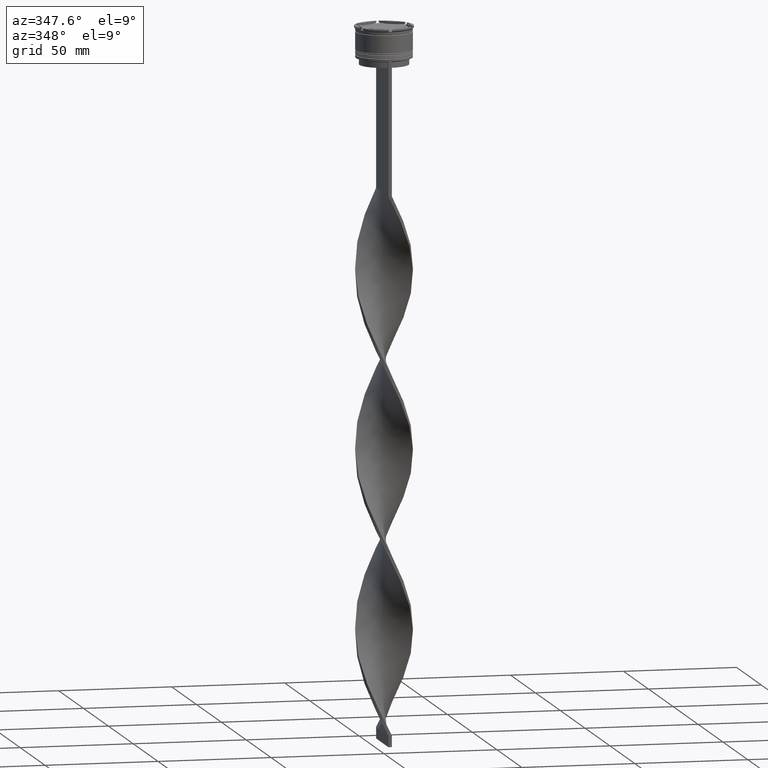
[diagram: clean part render]
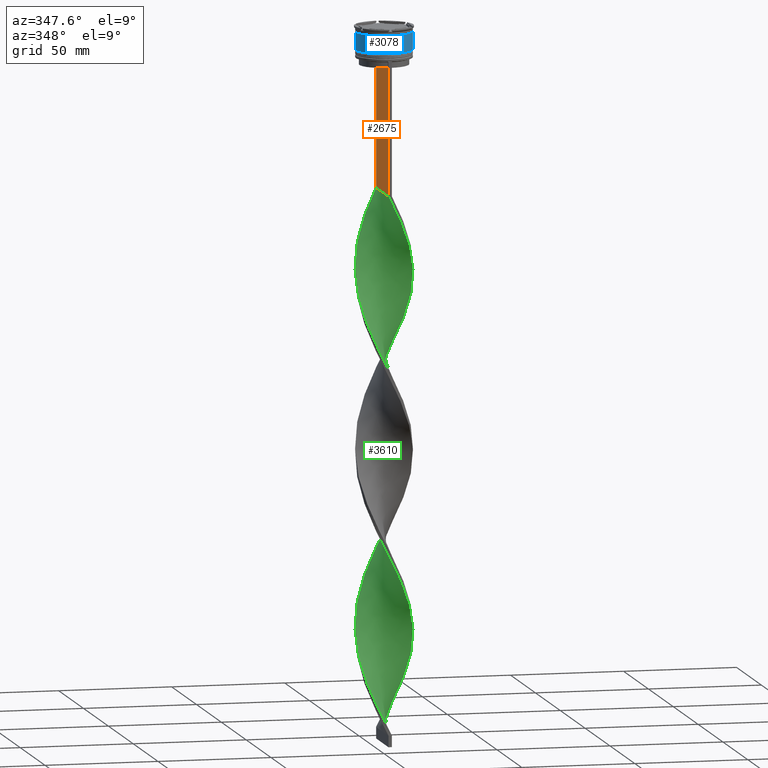
[diagram: same view with three faces highlighted in distinct colors, each labeled with its STEP entity id]
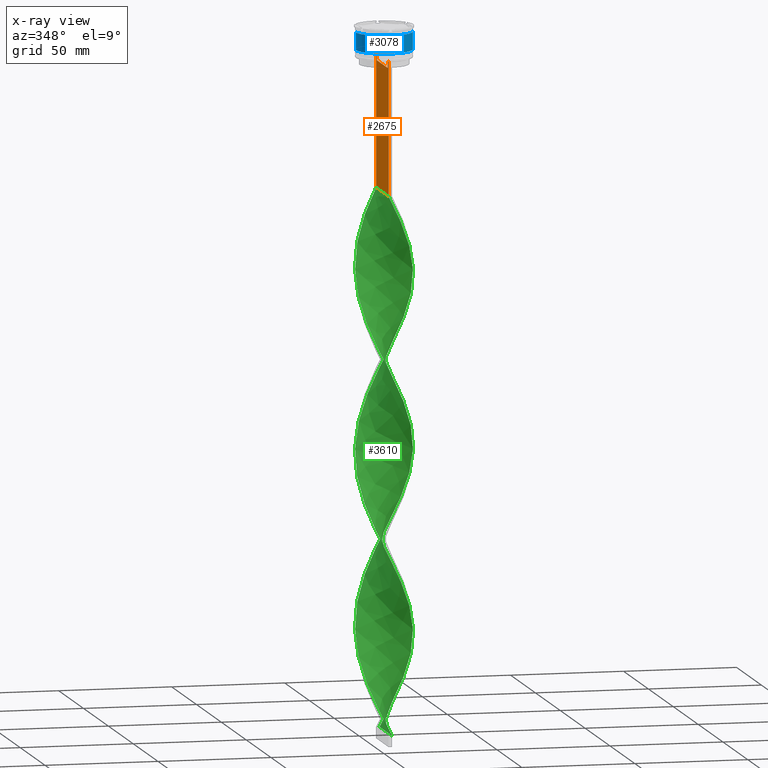
[diagram: x-ray of the same camera — body ghosted, the three highlighted faces saturated]
A machine part, auxiliary view with three faces highlighted in distinct colors.
The next image is the same camera in x-ray (body ghosted, the three faces saturated) — at least one of them is partly hidden behind the body in this view.
Their STEP definitions:

[orange] entity #2675 — the highlighted planar face has unit normal (-1, 0, 0).
#134 = DIRECTION ( 'NONE',  ( -1.000000000000000000, 0.000000000000000000, 0.000000000000000000 ) ) ;
#150 = CARTESIAN_POINT ( 'NONE',  ( -0.7499999999999997780, 10.87416663473574374, -14.50000000000000000 ) ) ;
#187 = DIRECTION ( 'NONE',  ( 0.000000000000000000, -1.000000000000000000, 0.000000000000000000 ) ) ;
#219 = LINE ( 'NONE', #2669, #3003 ) ;
#367 = VECTOR ( 'NONE', #3788, 1000.000000000000000 ) ;
#390 = EDGE_CURVE ( 'NONE', #4407, #4030, #882, .T. ) ;
#393 = ORIENTED_EDGE ( 'NONE', *, *, #3278, .F. ) ;
#441 = EDGE_CURVE ( 'NONE', #1171, #4360, #2990, .T. ) ;
#492 = DIRECTION ( 'NONE',  ( 0.000000000000000000, -1.000000000000000000, 0.000000000000000000 ) ) ;
#602 = EDGE_CURVE ( 'NONE', #1288, #2483, #4068, .T. ) ;
#637 = ORIENTED_EDGE ( 'NONE', *, *, #602, .F. ) ;
#640 = CARTESIAN_POINT ( 'NONE',  ( -0.7499999999999997780, -12.50000000000000000, -73.00000000000001421 ) ) ;
#647 = ORIENTED_EDGE ( 'NONE', *, *, #1461, .T. ) ;
#743 = CARTESIAN_POINT ( 'NONE',  ( -0.7499999999999997780, 10.87416663473574019, -17.00000000000000000 ) ) ;
#882 = LINE ( 'NONE', #2245, #1897 ) ;
#894 = ORIENTED_EDGE ( 'NONE', *, *, #1633, .F. ) ;
#947 = CARTESIAN_POINT ( 'NONE',  ( -0.7499999999999997780, -11.37530219378809093, -14.00000000000000178 ) ) ;
#979 = LINE ( 'NONE', #2407, #3520 ) ;
#1000 = LINE ( 'NONE', #2409, #367 ) ;
#1016 = CARTESIAN_POINT ( 'NONE',  ( -0.7499999999999997780, -11.20826532207830439, -14.16667499063191471 ) ) ;
#1073 = EDGE_CURVE ( 'NONE', #2483, #2301, #1000, .T. ) ;
#1081 = CARTESIAN_POINT ( 'NONE',  ( -0.7499999999999997780, 12.37729776647553059, -14.00000000000000178 ) ) ;
#1115 = EDGE_CURVE ( 'NONE', #4502, #1171, #2267, .T. ) ;
#1171 = VERTEX_POINT ( 'NONE', #4301 ) ;
#1212 = CARTESIAN_POINT ( 'NONE',  ( -0.7499999999999997780, -10.87416663473574374, 0.000000000000000000 ) ) ;
#1251 = DIRECTION ( 'NONE',  ( 0.000000000000000000, 0.000000000000000000, -1.000000000000000000 ) ) ;
#1260 = DIRECTION ( 'NONE',  ( -0.000000000000000000, -0.000000000000000000, 1.000000000000000000 ) ) ;
#1288 = VERTEX_POINT ( 'NONE', #3619 ) ;
#1323 = DIRECTION ( 'NONE',  ( 0.000000000000000000, -1.000000000000000000, 0.000000000000000000 ) ) ;
#1325 = VECTOR ( 'NONE', #2999, 1000.000000000000000 ) ;
#1461 = EDGE_CURVE ( 'NONE', #4407, #2914, #219, .T. ) ;
#1562 = VERTEX_POINT ( 'NONE', #2467 ) ;
#1633 = EDGE_CURVE ( 'NONE', #3541, #4108, #3826, .T. ) ;
#1665 = ORIENTED_EDGE ( 'NONE', *, *, #3644, .F. ) ;
#1846 = ORIENTED_EDGE ( 'NONE', *, *, #1115, .F. ) ;
#1897 = VECTOR ( 'NONE', #492, 1000.000000000000000 ) ;
#2033 = EDGE_CURVE ( 'NONE', #4108, #2914, #4427, .T. ) ;
#2045 = CARTESIAN_POINT ( 'NONE',  ( -0.7499999999999997780, -12.37729776647553059, -14.00000000000000178 ) ) ;
#2129 = DIRECTION ( 'NONE',  ( 0.000000000000000000, -1.000000000000000000, 0.000000000000000000 ) ) ;
#2173 = CARTESIAN_POINT ( 'NONE',  ( -0.7499999999999997780, -12.50000000000000000, -14.00000000000000178 ) ) ;
#2245 = CARTESIAN_POINT ( 'NONE',  ( -0.7499999999999997780, -12.50000000000000000, -14.00000000000000178 ) ) ;
#2262 = DIRECTION ( 'NONE',  ( 0.000000000000000000, 0.000000000000000000, 1.000000000000000000 ) ) ;
#2267 = B_SPLINE_CURVE_WITH_KNOTS ( 'NONE', 3,
 ( #4118, #2390, #3768, #150 ),
 .UNSPECIFIED., .F., .F.,
 ( 4, 4 ),
 ( 0.01936090553552769281, 0.02006881572333104116 ),
 .UNSPECIFIED. ) ;
#2270 = CARTESIAN_POINT ( 'NONE',  ( -0.7499999999999997780, -12.50000000000000000, -14.00000000000000178 ) ) ;
#2296 = VECTOR ( 'NONE', #2129, 1000.000000000000000 ) ;
#2301 = VERTEX_POINT ( 'NONE', #2045 ) ;
#2310 = CARTESIAN_POINT ( 'NONE',  ( -0.7499999999999997780, -12.50000000000000000, 11.04495957273638673 ) ) ;
#2361 = AXIS2_PLACEMENT_3D ( 'NONE', #2310, #134, #2262 ) ;
#2379 = DIRECTION ( 'NONE',  ( 0.000000000000000000, 0.000000000000000000, -1.000000000000000000 ) ) ;
#2388 = EDGE_LOOP ( 'NONE', ( #1846, #2686, #3030, #647, #4162, #894, #1665, #2970, #637, #393, #4036, #4429 ) ) ;
#2390 = CARTESIAN_POINT ( 'NONE',  ( -0.7499999999999997780, 11.20826531587977648, -14.16667499681701514 ) ) ;
#2407 = CARTESIAN_POINT ( 'NONE',  ( -0.7499999999999997780, 10.90000000000000213, -17.00000000000000000 ) ) ;
#2409 = CARTESIAN_POINT ( 'NONE',  ( -0.7499999999999997780, -12.50000000000000000, -14.00000000000000178 ) ) ;
#2444 = CARTESIAN_POINT ( 'NONE',  ( -0.7499999999999997780, -12.50000000000000000, 11.04495957273638673 ) ) ;
#2467 = CARTESIAN_POINT ( 'NONE',  ( -0.7499999999999997780, -10.87416663473574019, -17.00000000000000000 ) ) ;
#2483 = VERTEX_POINT ( 'NONE', #3090 ) ;
#2669 = CARTESIAN_POINT ( 'NONE',  ( -0.7499999999999997780, 12.50000000000000000, 11.04495957273638673 ) ) ;
#2675 = ADVANCED_FACE ( 'NONE', ( #3599 ), #4366, .T. ) ;
#2686 = ORIENTED_EDGE ( 'NONE', *, *, #3560, .F. ) ;
#2785 = LINE ( 'NONE', #2173, #2296 ) ;
#2846 = VECTOR ( 'NONE', #1251, 1000.000000000000000 ) ;
#2854 = VECTOR ( 'NONE', #3890, 1000.000000000000000 ) ;
#2914 = VERTEX_POINT ( 'NONE', #4257 ) ;
#2939 = CARTESIAN_POINT ( 'NONE',  ( -0.7499999999999997780, -12.50000000000000000, -73.00000000000001421 ) ) ;
#2941 = VECTOR ( 'NONE', #1260, 1000.000000000000000 ) ;
#2970 = ORIENTED_EDGE ( 'NONE', *, *, #1073, .F. ) ;
#2972 = CARTESIAN_POINT ( 'NONE',  ( -0.7499999999999997780, -12.50000000000000000, -14.00000000000000178 ) ) ;
#2990 = LINE ( 'NONE', #4371, #2846 ) ;
#2999 = DIRECTION ( 'NONE',  ( 0.000000000000000000, 1.000000000000000000, 0.000000000000000000 ) ) ;
#3003 = VECTOR ( 'NONE', #2379, 1000.000000000000000 ) ;
#3030 = ORIENTED_EDGE ( 'NONE', *, *, #390, .F. ) ;
#3090 = CARTESIAN_POINT ( 'NONE',  ( -0.7499999999999997780, -11.37530219378809093, -14.00000000000000178 ) ) ;
#3165 = VECTOR ( 'NONE', #187, 1000.000000000000000 ) ;
#3273 = LINE ( 'NONE', #1212, #2941 ) ;
#3278 = EDGE_CURVE ( 'NONE', #1562, #1288, #3273, .T. ) ;
#3317 = LINE ( 'NONE', #2972, #3165 ) ;
#3520 = VECTOR ( 'NONE', #1323, 1000.000000000000000 ) ;
#3533 = CARTESIAN_POINT ( 'NONE',  ( -0.7499999999999997780, 12.50000000000000000, -14.00000000000000178 ) ) ;
#3541 = VERTEX_POINT ( 'NONE', #2270 ) ;
#3560 = EDGE_CURVE ( 'NONE', #4030, #4502, #3317, .T. ) ;
#3585 = EDGE_CURVE ( 'NONE', #4360, #1562, #979, .T. ) ;
#3599 = FACE_OUTER_BOUND ( 'NONE', #2388, .T. ) ;
#3619 = CARTESIAN_POINT ( 'NONE',  ( -0.7499999999999997780, -10.87416663473574374, -14.50000000000000000 ) ) ;
#3644 = EDGE_CURVE ( 'NONE', #2301, #3541, #2785, .T. ) ;
#3768 = CARTESIAN_POINT ( 'NONE',  ( -0.7499999999999997780, 11.04122051153452055, -14.33334204648729582 ) ) ;
#3788 = DIRECTION ( 'NONE',  ( 0.000000000000000000, -1.000000000000000000, 0.000000000000000000 ) ) ;
#3826 = LINE ( 'NONE', #2444, #2854 ) ;
#3876 = CARTESIAN_POINT ( 'NONE',  ( -0.7499999999999997780, 11.37530219378809093, -14.00000000000000178 ) ) ;
#3890 = DIRECTION ( 'NONE',  ( 0.000000000000000000, 0.000000000000000000, -1.000000000000000000 ) ) ;
#4030 = VERTEX_POINT ( 'NONE', #1081 ) ;
#4036 = ORIENTED_EDGE ( 'NONE', *, *, #3585, .F. ) ;
#4068 = B_SPLINE_CURVE_WITH_KNOTS ( 'NONE', 3,
 ( #4085, #4151, #1016, #947 ),
 .UNSPECIFIED., .F., .F.,
 ( 4, 4 ),
 ( 0.05009718908159448147, 0.05081156920313960323 ),
 .UNSPECIFIED. ) ;
#4085 = CARTESIAN_POINT ( 'NONE',  ( -0.7499999999999997780, -10.87416663473574374, -14.50000000000000000 ) ) ;
#4108 = VERTEX_POINT ( 'NONE', #2939 ) ;
#4118 = CARTESIAN_POINT ( 'NONE',  ( -0.7499999999999997780, 11.37530219378809093, -14.00000000000000178 ) ) ;
#4151 = CARTESIAN_POINT ( 'NONE',  ( -0.7499999999999997780, -11.04122051801870619, -14.33334204001847745 ) ) ;
#4162 = ORIENTED_EDGE ( 'NONE', *, *, #2033, .F. ) ;
#4257 = CARTESIAN_POINT ( 'NONE',  ( -0.7499999999999997780, 12.50000000000000000, -73.00000000000001421 ) ) ;
#4301 = CARTESIAN_POINT ( 'NONE',  ( -0.7499999999999997780, 10.87416663473574374, -14.50000000000000000 ) ) ;
#4360 = VERTEX_POINT ( 'NONE', #743 ) ;
#4366 = PLANE ( 'NONE',  #2361 ) ;
#4371 = CARTESIAN_POINT ( 'NONE',  ( -0.7499999999999997780, 10.87416663473574374, 0.000000000000000000 ) ) ;
#4407 = VERTEX_POINT ( 'NONE', #3533 ) ;
#4427 = LINE ( 'NONE', #640, #1325 ) ;
#4429 = ORIENTED_EDGE ( 'NONE', *, *, #441, .F. ) ;
#4502 = VERTEX_POINT ( 'NONE', #3876 ) ;

[blue] entity #3078 — the highlighted cylindrical surface (edge-blend (fillet) strip) has radius 12.5 mm, axis along (-0, -0, 1).
#18 = VERTEX_POINT ( 'NONE', #2410 ) ;
#30 = ORIENTED_EDGE ( 'NONE', *, *, #2645, .T. ) ;
#72 = EDGE_CURVE ( 'NONE', #18, #385, #453, .T. ) ;
#242 = AXIS2_PLACEMENT_3D ( 'NONE', #2640, #479, #2663 ) ;
#385 = VERTEX_POINT ( 'NONE', #3973 ) ;
#453 = LINE ( 'NONE', #2459, #3361 ) ;
#479 = DIRECTION ( 'NONE',  ( -0.000000000000000000, -0.000000000000000000, 1.000000000000000000 ) ) ;
#1142 = VERTEX_POINT ( 'NONE', #1493 ) ;
#1334 = EDGE_LOOP ( 'NONE', ( #2563, #30, #2133, #1939 ) ) ;
#1493 = CARTESIAN_POINT ( 'NONE',  ( 12.49999999999999822, 0.000000000000000000, -2.699999999999999289 ) ) ;
#1546 = CIRCLE ( 'NONE', #242, 12.49999999999999822 ) ;
#1620 = CIRCLE ( 'NONE', #3807, 12.50000000000000178 ) ;
#1690 = EDGE_CURVE ( 'NONE', #2642, #1142, #2102, .T. ) ;
#1866 = DIRECTION ( 'NONE',  ( 1.000000000000000000, 0.000000000000000000, 0.000000000000000000 ) ) ;
#1939 = ORIENTED_EDGE ( 'NONE', *, *, #3258, .F. ) ;
#2102 = LINE ( 'NONE', #2418, #3656 ) ;
#2114 = DIRECTION ( 'NONE',  ( -0.000000000000000000, -0.000000000000000000, 1.000000000000000000 ) ) ;
#2133 = ORIENTED_EDGE ( 'NONE', *, *, #1690, .T. ) ;
#2410 = CARTESIAN_POINT ( 'NONE',  ( -12.50000000000000355, 1.530808498934191916E-15, -10.50000000000000178 ) ) ;
#2418 = CARTESIAN_POINT ( 'NONE',  ( 12.50000000000000000, 0.000000000000000000, 0.000000000000000000 ) ) ;
#2459 = CARTESIAN_POINT ( 'NONE',  ( -12.50000000000000000, 1.530808498934191521E-15, 0.000000000000000000 ) ) ;
#2563 = ORIENTED_EDGE ( 'NONE', *, *, #72, .F. ) ;
#2640 = CARTESIAN_POINT ( 'NONE',  ( 0.000000000000000000, 0.000000000000000000, -2.699999999999999289 ) ) ;
#2642 = VERTEX_POINT ( 'NONE', #2647 ) ;
#2645 = EDGE_CURVE ( 'NONE', #18, #2642, #1620, .T. ) ;
#2647 = CARTESIAN_POINT ( 'NONE',  ( 12.50000000000000178, 0.000000000000000000, -10.50000000000000178 ) ) ;
#2663 = DIRECTION ( 'NONE',  ( 1.000000000000000000, 0.000000000000000000, 0.000000000000000000 ) ) ;
#2985 = DIRECTION ( 'NONE',  ( -0.000000000000000000, -0.000000000000000000, 1.000000000000000000 ) ) ;
#3032 = CARTESIAN_POINT ( 'NONE',  ( 0.000000000000000000, 0.000000000000000000, 0.000000000000000000 ) ) ;
#3078 = ADVANCED_FACE ( 'NONE', ( #3303 ), #3665, .T. ) ;
#3232 = AXIS2_PLACEMENT_3D ( 'NONE', #3032, #4410, #3709 ) ;
#3258 = EDGE_CURVE ( 'NONE', #385, #1142, #1546, .T. ) ;
#3303 = FACE_OUTER_BOUND ( 'NONE', #1334, .T. ) ;
#3361 = VECTOR ( 'NONE', #2114, 1000.000000000000000 ) ;
#3481 = DIRECTION ( 'NONE',  ( -0.000000000000000000, -0.000000000000000000, 1.000000000000000000 ) ) ;
#3642 = CARTESIAN_POINT ( 'NONE',  ( 0.000000000000000000, 0.000000000000000000, -10.50000000000000178 ) ) ;
#3656 = VECTOR ( 'NONE', #3481, 1000.000000000000000 ) ;
#3665 = CYLINDRICAL_SURFACE ( 'NONE', #3232, 12.50000000000000000 ) ;
#3709 = DIRECTION ( 'NONE',  ( 1.000000000000000000, 0.000000000000000000, 0.000000000000000000 ) ) ;
#3807 = AXIS2_PLACEMENT_3D ( 'NONE', #3642, #2985, #1866 ) ;
#3973 = CARTESIAN_POINT ( 'NONE',  ( -12.49999999999999822, 1.530808498934191324E-15, -2.699999999999999289 ) ) ;
#4410 = DIRECTION ( 'NONE',  ( -0.000000000000000000, -0.000000000000000000, 1.000000000000000000 ) ) ;

[green] entity #3610 — the highlighted face is a freeform B-spline surface patch.
#4 = CARTESIAN_POINT ( 'NONE',  ( 8.715271351328700788, 9.045873944214958939, -291.3000000000000682 ) ) ;
#28 = CARTESIAN_POINT ( 'NONE',  ( 4.103282305125622642, -11.87210446662093588, -240.1666666666667140 ) ) ;
#35 = CARTESIAN_POINT ( 'NONE',  ( 12.44097371988153711, -1.733771335307731531, -267.6999999999999318 ) ) ;
#49 = CARTESIAN_POINT ( 'NONE',  ( -8.715271351328704341, -9.045873944214953610, -212.6333333333333826 ) ) ;
#67 = CARTESIAN_POINT ( 'NONE',  ( 9.045873944214960716, -8.715271351328697236, -251.9666666666666970 ) ) ;
#73 = CARTESIAN_POINT ( 'NONE',  ( -12.46343010621939484, 1.214664557556533353, -108.3999999999999915 ) ) ;
#90 = CARTESIAN_POINT ( 'NONE',  ( 11.65644370790820794, -4.576004816908208817, -261.7999999999999545 ) ) ;
#99 = CARTESIAN_POINT ( 'NONE',  ( -5.006626353603061297, -11.47807442715925852, -139.8666666666666742 ) ) ;
#116 = CARTESIAN_POINT ( 'NONE',  ( -5.493386832225668925, 11.29630431837985682, -82.83333333333335702 ) ) ;
#123 = CARTESIAN_POINT ( 'NONE',  ( 5.493386832225667149, -11.29630431837985860, -161.5000000000000000 ) ) ;
#136 = CARTESIAN_POINT ( 'NONE',  ( -8.308504678941934785, -9.369164850721753979, -132.0000000000000000 ) ) ;
#142 = CARTESIAN_POINT ( 'NONE',  ( 6.343136139885608316, -10.79708867754994017, -163.4666666666666401 ) ) ;
#144 = CARTESIAN_POINT ( 'NONE',  ( 9.671873490467490342, -7.954078399437124247, -96.60000000000000853 ) ) ;
#156 = CARTESIAN_POINT ( 'NONE',  ( -11.65644370790820972, -4.576004816908207040, -120.2000000000000028 ) ) ;
#164 = CARTESIAN_POINT ( 'NONE',  ( 11.87210446662093410, -4.103282305125629748, -181.1666666666666856 ) ) ;
#183 = CARTESIAN_POINT ( 'NONE',  ( 11.87210446662093410, -4.103282305125628859, -181.1666666666667140 ) ) ;
#203 = CARTESIAN_POINT ( 'NONE',  ( -11.47807442715925852, 5.006626353603060409, -100.5333333333333314 ) ) ;
#208 = CARTESIAN_POINT ( 'NONE',  ( -6.343136139885610092, 10.79708867754994017, -242.1333333333333258 ) ) ;
#211 = CARTESIAN_POINT ( 'NONE',  ( 7.954078399437126023, 9.671873490467488566, -135.9333333333333371 ) ) ;
#224 = CARTESIAN_POINT ( 'NONE',  ( 8.308504678941934785, 9.369164850721752202, -210.6666666666666572 ) ) ;
#230 = CARTESIAN_POINT ( 'NONE',  ( -3.149420042465476133, 12.11996919947063311, -159.5333333333333314 ) ) ;
#232 = CARTESIAN_POINT ( 'NONE',  ( -0.2337713353077325862, -12.55902628011846645, -307.0333333333333030 ) ) ;
#234 = CARTESIAN_POINT ( 'NONE',  ( 11.08404438769758293, 5.909970402080498175, -126.1000000000000227 ) ) ;
#251 = CARTESIAN_POINT ( 'NONE',  ( -6.343136139885610092, 10.79708867754994017, -242.1333333333333258 ) ) ;
#254 = CARTESIAN_POINT ( 'NONE',  ( 5.493386832225669814, 11.29630431837985682, -141.8333333333333144 ) ) ;
#259 = CARTESIAN_POINT ( 'NONE',  ( -8.308504678941933008, 9.369164850721755755, -171.3333333333333428 ) ) ;
#274 = CARTESIAN_POINT ( 'NONE',  ( -11.65644370790820972, -4.576004816908207040, -277.5333333333333030 ) ) ;
#277 = CARTESIAN_POINT ( 'NONE',  ( -9.369164850721755755, -8.308504678941931232, -210.6666666666666572 ) ) ;
#289 = CARTESIAN_POINT ( 'NONE',  ( -8.715271351328697236, 9.045873944214960716, -248.0333333333333314 ) ) ;
#297 = CARTESIAN_POINT ( 'NONE',  ( 3.658622801590749152, 12.01658309743656083, -145.7666666666666515 ) ) ;
#322 = CARTESIAN_POINT ( 'NONE',  ( -11.08404438769758649, -5.909970402080492846, -204.7666666666666799 ) ) ;
#324 = CARTESIAN_POINT ( 'NONE',  ( -1.733771335307730643, 12.44097371988153711, -74.96666666666668277 ) ) ;
#337 = CARTESIAN_POINT ( 'NONE',  ( -4.576004816908211481, -11.65644370790820794, -222.4666666666666686 ) ) ;
#342 = CARTESIAN_POINT ( 'NONE',  ( -8.715271351328704341, -9.045873944214953610, -212.6333333333333826 ) ) ;
#358 = CARTESIAN_POINT ( 'NONE',  ( 9.671873490467490342, -7.954078399437124247, -253.9333333333333371 ) ) ;
#363 = CARTESIAN_POINT ( 'NONE',  ( 9.369164850721755755, 8.308504678941933008, -289.3333333333333144 ) ) ;
#382 = CARTESIAN_POINT ( 'NONE',  ( -3.658622801590746043, -12.01658309743656261, -224.4333333333333655 ) ) ;
#406 = CARTESIAN_POINT ( 'NONE',  ( 12.44097371988153711, -1.733771335307731531, -267.6999999999999318 ) ) ;
#411 = CARTESIAN_POINT ( 'NONE',  ( -12.01658309743656261, -3.658622801590747819, -118.2333333333333485 ) ) ;
#414 =( BOUNDED_CURVE ( )  B_SPLINE_CURVE ( 2, ( #551, #823, #2932, #2302, #4050, #4318, #499, #912, #3980, #890, #2958, #3631, #144, #1625, #864, #845, #2251, #2275, #3682, #1948, #2230, #1899, #3296, #3703, #1926, #3320, #1578, #234, #3025, #2976, #3340, #1165, #211, #2576, #4426, #2344, #4074, #297, #4139, #1285, #2021, #1351, #1329, #4474, #3770, #3428, #1714, #4404, #1693, #3725, #259, #3094, #2769, #4158, #1648, #3790, #2095, #2683, #660, #3067, #2071, #3752, #3475, #3453, #3820, #2748, #3389, #322, #960, #1026, #277, #342, #2437, #3047, #2728, #1002, #2411, #3114, #4493, #1305, #2370, #1370, #686, #597, #1997, #1669, #934, #2704, #1736, #4096, #619, #3409, #4450, #4121, #984, #2392, #638, #2044, #4204, #35, #4185, #2546, #1758, #3884, #3159, #706, #3860, #1420, #3926, #2481, #363, #3518, #2161, #3135, #792, #1119, #1802, #456, #2816, #2200, #1457 ),
 .UNSPECIFIED., .F., .F. ) 
 B_SPLINE_CURVE_WITH_KNOTS ( ( 3, 2, 2, 2, 2, 2, 2, 2, 2, 2, 2, 2, 2, 2, 2, 2, 2, 2, 2, 2, 2, 2, 2, 2, 2, 2, 2, 2, 2, 2, 2, 2, 2, 2, 2, 2, 2, 2, 2, 2, 2, 2, 2, 2, 2, 2, 2, 2, 2, 2, 2, 2, 2, 2, 2, 2, 2, 2, 2, 2, 3 ),
 ( 0.000000000000000000, 0.01250000000000000243, 0.02500000000000000486, 0.03749999999999999861, 0.05000000000000000971, 0.06250000000000000000, 0.07499999999999999722, 0.08749999999999998057, 0.1000000000000000194, 0.1125000000000000028, 0.1250000000000000000, 0.1375000000000000111, 0.1499999999999999944, 0.1625000000000000056, 0.1749999999999999611, 0.1875000000000000000, 0.2000000000000000389, 0.2124999999999999944, 0.2250000000000000056, 0.2374999999999999611, 0.2500000000000000000, 0.2625000000000000111, 0.2750000000000000222, 0.2874999999999999778, 0.2999999999999999889, 0.3125000000000000000, 0.3250000000000000111, 0.3375000000000000777, 0.3499999999999999223, 0.3624999999999999889, 0.3750000000000000000, 0.3875000000000000111, 0.4000000000000000777, 0.4124999999999999223, 0.4249999999999999889, 0.4375000000000000000, 0.4500000000000000111, 0.4625000000000000777, 0.4749999999999999223, 0.4874999999999999889, 0.5000000000000000000, 0.5124999999999999556, 0.5250000000000000222, 0.5374999999999999778, 0.5500000000000000444, 0.5625000000000000000, 0.5749999999999999556, 0.5875000000000000222, 0.5999999999999999778, 0.6125000000000000444, 0.6250000000000000000, 0.6374999999999999556, 0.6500000000000000222, 0.6624999999999999778, 0.6750000000000001554, 0.6875000000000000000, 0.6999999999999998446, 0.7125000000000000222, 0.7249999999999999778, 0.7375000000000001554, 0.7500000000000000000 ),
 .UNSPECIFIED. ) 
 CURVE ( )  GEOMETRIC_REPRESENTATION_ITEM ( )  RATIONAL_B_SPLINE_CURVE ( ( 1.000000000000000000, 0.9969173337331279638, 1.000000000000000000, 0.9969173337331279638, 1.000000000000000000, 0.9969173337331279638, 1.000000000000000000, 0.9969173337331279638, 1.000000000000000000, 0.9969173337331279638, 1.000000000000000000, 0.9969173337331279638, 1.000000000000000000, 0.9969173337331279638, 1.000000000000000000, 0.9969173337331279638, 1.000000000000000000, 0.9969173337331279638, 1.000000000000000000, 0.9969173337331279638, 1.000000000000000000, 0.9969173337331279638, 1.000000000000000000, 0.9969173337331279638, 1.000000000000000000, 0.9969173337331279638, 1.000000000000000000, 0.9969173337331279638, 1.000000000000000000, 0.9969173337331279638, 1.000000000000000000, 0.9969173337331279638, 1.000000000000000000, 0.9969173337331279638, 1.000000000000000000, 0.9969173337331279638, 1.000000000000000000, 0.9969173337331279638, 1.000000000000000000, 0.9969173337331279638, 1.000000000000000000, 0.9969173337331279638, 1.000000000000000000, 0.9969173337331279638, 1.000000000000000000, 0.9969173337331279638, 1.000000000000000000, 0.9969173337331279638, 1.000000000000000000, 0.9969173337331279638, 1.000000000000000000, 0.9969173337331279638, 1.000000000000000000, 0.9969173337331279638, 1.000000000000000000, 0.9969173337331279638, 1.000000000000000000, 0.9969173337331279638, 1.000000000000000000, 0.9969173337331279638, 1.000000000000000000, 0.9969173337331279638, 1.000000000000000000, 0.9969173337331279638, 1.000000000000000000, 0.9969173337331279638, 1.000000000000000000, 0.9969173337331279638, 1.000000000000000000, 0.9969173337331279638, 1.000000000000000000, 0.9969173337331279638, 1.000000000000000000, 0.9969173337331279638, 1.000000000000000000, 0.9969173337331279638, 1.000000000000000000, 0.9969173337331279638, 1.000000000000000000, 0.9969173337331279638, 1.000000000000000000, 0.9969173337331279638, 1.000000000000000000, 0.9969173337331279638, 1.000000000000000000, 0.9969173337331279638, 1.000000000000000000, 0.9969173337331279638, 1.000000000000000000, 0.9969173337331279638, 1.000000000000000000, 0.9969173337331279638, 1.000000000000000000, 0.9969173337331279638, 1.000000000000000000, 0.9969173337331279638, 1.000000000000000000, 0.9969173337331279638, 1.000000000000000000, 0.9969173337331279638, 1.000000000000000000, 0.9969173337331279638, 1.000000000000000000, 0.9969173337331279638, 1.000000000000000000, 0.9969173337331279638, 1.000000000000000000, 0.9969173337331279638, 1.000000000000000000, 0.9969173337331279638, 1.000000000000000000, 0.9969173337331279638, 1.000000000000000000, 0.9969173337331279638, 1.000000000000000000, 0.9969173337331279638, 1.000000000000000000, 0.9969173337331279638, 1.000000000000000000, 0.9969173337331279638, 1.000000000000000000 ) ) 
 REPRESENTATION_ITEM ( '' )  );
#424 = CARTESIAN_POINT ( 'NONE',  ( -10.29787303672002707, 7.192885447545552147, -177.2333333333333485 ) ) ;
#432 = CARTESIAN_POINT ( 'NONE',  ( -12.11996919947063134, 3.149420042465478353, -104.4666666666666828 ) ) ;
#449 = CARTESIAN_POINT ( 'NONE',  ( -4.103282305125623530, -11.87210446662093588, -141.8333333333333144 ) ) ;
#456 = CARTESIAN_POINT ( 'NONE',  ( 3.658622801590749152, 12.01658309743656083, -303.0999999999999659 ) ) ;
#457 = CARTESIAN_POINT ( 'NONE',  ( -6.740552907874705291, -10.55355136890619683, -135.9333333333333371 ) ) ;
#470 =( BOUNDED_CURVE ( )  B_SPLINE_CURVE ( 2, ( #4187, #324, #3494, #1715, #4206, #1094, #2504, #3885, #3115, #1371, #2770, #1896, #2929, #4246, #3271, #843, #432, #477, #73, #3951, #2599, #771, #3540, #411, #1826, #1163, #2883, #4269, #1189, #3629, #1141, #2547, #457, #3927, #99, #820, #2573, #3293, #1504, #3251, #793, #4315, #2202, #1803, #1852, #123, #142, #1459, #3977, #2227, #2859, #2249, #1483, #4337, #497, #164, #3608, #1121, #1524, #3227, #1555, #2956, #1209, #3905, #3586, #1877, #2619, #752, #2162, #2180, #2904, #3204, #2526, #3561, #4292, #3748, #3701, #1666, #3021, #3654, #4401, #524, #2973, #4092, #2299, #1923, #208, #3063, #549, #887, #3318, #3406, #3360, #2660, #616, #2367, #4423, #930, #2321, #569, #3680, #4377, #1281, #3998, #274, #1993, #2680, #1326, #1946, #4445, #2341, #4356, #3720, #1230, #1621, #1968, #1301, #3338, #4071, #232, #2637 ),
 .UNSPECIFIED., .F., .F. ) 
 B_SPLINE_CURVE_WITH_KNOTS ( ( 3, 2, 2, 2, 2, 2, 2, 2, 2, 2, 2, 2, 2, 2, 2, 2, 2, 2, 2, 2, 2, 2, 2, 2, 2, 2, 2, 2, 2, 2, 2, 2, 2, 2, 2, 2, 2, 2, 2, 2, 2, 2, 2, 2, 2, 2, 2, 2, 2, 2, 2, 2, 2, 2, 2, 2, 2, 2, 2, 2, 3 ),
 ( 0.000000000000000000, 0.01250000000000000243, 0.02500000000000000486, 0.03749999999999999861, 0.05000000000000000971, 0.06250000000000000000, 0.07499999999999999722, 0.08749999999999998057, 0.1000000000000000194, 0.1125000000000000028, 0.1250000000000000000, 0.1375000000000000111, 0.1499999999999999944, 0.1625000000000000056, 0.1749999999999999611, 0.1875000000000000000, 0.2000000000000000389, 0.2124999999999999944, 0.2250000000000000056, 0.2374999999999999611, 0.2500000000000000000, 0.2625000000000000111, 0.2750000000000000222, 0.2874999999999999778, 0.2999999999999999889, 0.3125000000000000000, 0.3250000000000000111, 0.3375000000000000777, 0.3499999999999999223, 0.3624999999999999889, 0.3750000000000000000, 0.3875000000000000111, 0.4000000000000000777, 0.4124999999999999223, 0.4249999999999999889, 0.4375000000000000000, 0.4500000000000000111, 0.4625000000000000777, 0.4749999999999999223, 0.4874999999999999889, 0.5000000000000000000, 0.5124999999999999556, 0.5250000000000000222, 0.5374999999999999778, 0.5500000000000000444, 0.5625000000000000000, 0.5749999999999999556, 0.5875000000000000222, 0.5999999999999999778, 0.6125000000000000444, 0.6250000000000000000, 0.6374999999999999556, 0.6500000000000000222, 0.6624999999999999778, 0.6750000000000001554, 0.6875000000000000000, 0.6999999999999998446, 0.7125000000000000222, 0.7249999999999999778, 0.7375000000000001554, 0.7500000000000000000 ),
 .UNSPECIFIED. ) 
 CURVE ( )  GEOMETRIC_REPRESENTATION_ITEM ( )  RATIONAL_B_SPLINE_CURVE ( ( 1.000000000000000000, 0.9969173337331279638, 1.000000000000000000, 0.9969173337331279638, 1.000000000000000000, 0.9969173337331279638, 1.000000000000000000, 0.9969173337331279638, 1.000000000000000000, 0.9969173337331279638, 1.000000000000000000, 0.9969173337331279638, 1.000000000000000000, 0.9969173337331279638, 1.000000000000000000, 0.9969173337331279638, 1.000000000000000000, 0.9969173337331279638, 1.000000000000000000, 0.9969173337331279638, 1.000000000000000000, 0.9969173337331279638, 1.000000000000000000, 0.9969173337331279638, 1.000000000000000000, 0.9969173337331279638, 1.000000000000000000, 0.9969173337331279638, 1.000000000000000000, 0.9969173337331279638, 1.000000000000000000, 0.9969173337331279638, 1.000000000000000000, 0.9969173337331279638, 1.000000000000000000, 0.9969173337331279638, 1.000000000000000000, 0.9969173337331279638, 1.000000000000000000, 0.9969173337331279638, 1.000000000000000000, 0.9969173337331279638, 1.000000000000000000, 0.9969173337331279638, 1.000000000000000000, 0.9969173337331279638, 1.000000000000000000, 0.9969173337331279638, 1.000000000000000000, 0.9969173337331279638, 1.000000000000000000, 0.9969173337331279638, 1.000000000000000000, 0.9969173337331279638, 1.000000000000000000, 0.9969173337331279638, 1.000000000000000000, 0.9969173337331279638, 1.000000000000000000, 0.9969173337331279638, 1.000000000000000000, 0.9969173337331279638, 1.000000000000000000, 0.9969173337331279638, 1.000000000000000000, 0.9969173337331279638, 1.000000000000000000, 0.9969173337331279638, 1.000000000000000000, 0.9969173337331279638, 1.000000000000000000, 0.9969173337331279638, 1.000000000000000000, 0.9969173337331279638, 1.000000000000000000, 0.9969173337331279638, 1.000000000000000000, 0.9969173337331279638, 1.000000000000000000, 0.9969173337331279638, 1.000000000000000000, 0.9969173337331279638, 1.000000000000000000, 0.9969173337331279638, 1.000000000000000000, 0.9969173337331279638, 1.000000000000000000, 0.9969173337331279638, 1.000000000000000000, 0.9969173337331279638, 1.000000000000000000, 0.9969173337331279638, 1.000000000000000000, 0.9969173337331279638, 1.000000000000000000, 0.9969173337331279638, 1.000000000000000000, 0.9969173337331279638, 1.000000000000000000, 0.9969173337331279638, 1.000000000000000000, 0.9969173337331279638, 1.000000000000000000, 0.9969173337331279638, 1.000000000000000000, 0.9969173337331279638, 1.000000000000000000, 0.9969173337331279638, 1.000000000000000000, 0.9969173337331279638, 1.000000000000000000, 0.9969173337331279638, 1.000000000000000000, 0.9969173337331279638, 1.000000000000000000, 0.9969173337331279638, 1.000000000000000000, 0.9969173337331279638, 1.000000000000000000, 0.9969173337331279638, 1.000000000000000000 ) ) 
 REPRESENTATION_ITEM ( '' )  );
#472 = CARTESIAN_POINT ( 'NONE',  ( -10.29787303672002530, -7.192885447545554811, -126.1000000000000369 ) ) ;
#477 = CARTESIAN_POINT ( 'NONE',  ( -12.36783393232032502, 2.195557779805335841, -106.4333333333333513 ) ) ;
#491 = CARTESIAN_POINT ( 'NONE',  ( -9.045873944214960716, -8.715271351328697236, -130.0333333333333314 ) ) ;
#497 = CARTESIAN_POINT ( 'NONE',  ( 11.47807442715925852, -5.006626353603061297, -179.1999999999999886 ) ) ;
#499 = CARTESIAN_POINT ( 'NONE',  ( 5.006626353603059520, -11.47807442715926030, -84.80000000000001137 ) ) ;
#503 = B_SPLINE_CURVE_WITH_KNOTS ( 'NONE', 3,
 ( #4166, #755, #4209, #3122 ),
 .UNSPECIFIED., .F., .F.,
 ( 4, 4 ),
 ( 0.000000000000000000, 1.000000000000000000 ),
 .UNSPECIFIED. ) ;
#516 = CARTESIAN_POINT ( 'NONE',  ( -11.87210446662093588, 4.103282305125623530, -102.5000000000000000 ) ) ;
#524 = CARTESIAN_POINT ( 'NONE',  ( -1.733771335307730643, 12.44097371988153711, -232.3000000000000398 ) ) ;
#542 = CARTESIAN_POINT ( 'NONE',  ( -7.571135413668911518, -10.02305835011481605, -133.9666666666666686 ) ) ;
#549 = CARTESIAN_POINT ( 'NONE',  ( -7.954078399437124247, 9.671873490467490342, -246.0666666666666629 ) ) ;
#551 = CARTESIAN_POINT ( 'NONE',  ( -0.7499999999999997780, -12.50000000000000000, -73.00000000000001421 ) ) ;
#562 = CARTESIAN_POINT ( 'NONE',  ( 10.29787303672002885, 7.192885447545549482, -204.7666666666666799 ) ) ;
#567 = CARTESIAN_POINT ( 'NONE',  ( 12.50000000000000000, -0.7500000000000005551, -112.3333333333333428 ) ) ;
#569 = CARTESIAN_POINT ( 'NONE',  ( -12.55902628011846645, 0.2337713353077317258, -267.6999999999999318 ) ) ;
#587 = CARTESIAN_POINT ( 'NONE',  ( 0.2337713353077395251, 12.55902628011846822, -228.3666666666666458 ) ) ;
#591 = CARTESIAN_POINT ( 'NONE',  ( 4.103282305125622642, -11.87210446662093588, -82.83333333333335702 ) ) ;
#597 = CARTESIAN_POINT ( 'NONE',  ( 2.195557779805334953, -12.36783393232032502, -236.2333333333333485 ) ) ;
#615 = CARTESIAN_POINT ( 'NONE',  ( 12.44097371988153711, -1.733771335307731531, -110.3666666666666600 ) ) ;
#616 = CARTESIAN_POINT ( 'NONE',  ( -11.47807442715925852, 5.006626353603060409, -257.8666666666666742 ) ) ;
#619 = CARTESIAN_POINT ( 'NONE',  ( 8.308504678941934785, -9.369164850721755755, -250.0000000000000000 ) ) ;
#632 = CARTESIAN_POINT ( 'NONE',  ( -12.44097371988153711, -1.733771335307729755, -271.6333333333332689 ) ) ;
#634 = CARTESIAN_POINT ( 'NONE',  ( 12.36783393232032680, 2.195557779805334508, -118.2333333333333343 ) ) ;
#638 = CARTESIAN_POINT ( 'NONE',  ( 11.65644370790820794, -4.576004816908208817, -261.7999999999999545 ) ) ;
#640 = CARTESIAN_POINT ( 'NONE',  ( -0.7499999999999997780, -12.50000000000000000, -73.00000000000001421 ) ) ;
#654 = CARTESIAN_POINT ( 'NONE',  ( 10.55355136890619860, 6.740552907874702626, -128.0666666666666629 ) ) ;
#660 = CARTESIAN_POINT ( 'NONE',  ( -12.22877840865904808, 2.696197068449241119, -187.0666666666666629 ) ) ;
#676 = CARTESIAN_POINT ( 'NONE',  ( 4.103282305125629748, 11.87210446662093410, -220.5000000000000284 ) ) ;
#679 = CARTESIAN_POINT ( 'NONE',  ( 10.02305835011481427, 7.571135413668909742, -287.3666666666667311 ) ) ;
#686 = CARTESIAN_POINT ( 'NONE',  ( 1.214664557556532909, -12.46343010621939484, -234.2666666666666515 ) ) ;
#700 = CARTESIAN_POINT ( 'NONE',  ( 12.36783393232032680, 2.195557779805334508, -275.5666666666666060 ) ) ;
#706 = CARTESIAN_POINT ( 'NONE',  ( 11.87210446662093588, 4.103282305125621754, -279.4999999999999432 ) ) ;
#721 = CARTESIAN_POINT ( 'NONE',  ( -5.493386832225676919, -11.29630431837985505, -220.5000000000000284 ) ) ;
#744 = CARTESIAN_POINT ( 'NONE',  ( 1.214664557556532909, -12.46343010621939484, -234.2666666666666515 ) ) ;
#752 = CARTESIAN_POINT ( 'NONE',  ( 10.29787303672002707, 7.192885447545548594, -204.7666666666666799 ) ) ;
#755 = CARTESIAN_POINT ( 'NONE',  ( 0.7500000000000003331, 4.166666666666667851, -309.0000000000000000 ) ) ;
#765 = CARTESIAN_POINT ( 'NONE',  ( 3.149420042465477465, -12.11996919947063134, -238.1999999999999886 ) ) ;
#771 = CARTESIAN_POINT ( 'NONE',  ( -12.44097371988153711, -1.733771335307729755, -114.3000000000000256 ) ) ;
#785 = CARTESIAN_POINT ( 'NONE',  ( 1.733771335307732420, 12.44097371988153711, -307.0333333333333030 ) ) ;
#792 = CARTESIAN_POINT ( 'NONE',  ( 6.343136139885611868, 10.79708867754993840, -297.2000000000000455 ) ) ;
#793 = CARTESIAN_POINT ( 'NONE',  ( 0.7499999999999983347, -12.50000000000000000, -151.6666666666666856 ) ) ;
#810 = CARTESIAN_POINT ( 'NONE',  ( -12.46343010621939484, 1.214664557556533353, -108.3999999999999915 ) ) ;
#820 = CARTESIAN_POINT ( 'NONE',  ( -4.103282305125623530, -11.87210446662093588, -141.8333333333333428 ) ) ;
#823 = CARTESIAN_POINT ( 'NONE',  ( 0.2337713353077308376, -12.55902628011846645, -74.96666666666668277 ) ) ;
#837 = CARTESIAN_POINT ( 'NONE',  ( 6.343136139885608316, -10.79708867754994017, -163.4666666666666401 ) ) ;
#843 = CARTESIAN_POINT ( 'NONE',  ( -11.87210446662093588, 4.103282305125623530, -102.5000000000000142 ) ) ;
#845 = CARTESIAN_POINT ( 'NONE',  ( 11.29630431837985682, -5.493386832225669814, -102.5000000000000142 ) ) ;
#857 = CARTESIAN_POINT ( 'NONE',  ( -12.50000000000000000, -0.7499999999999990008, -112.3333333333333428 ) ) ;
#863 = ORIENTED_EDGE ( 'NONE', *, *, #1575, .F. ) ;
#864 = CARTESIAN_POINT ( 'NONE',  ( 10.79708867754993840, -6.343136139885610980, -100.5333333333333314 ) ) ;
#879 = CARTESIAN_POINT ( 'NONE',  ( -0.7499999999999997780, 12.50000000000000000, -73.00000000000001421 ) ) ;
#887 = CARTESIAN_POINT ( 'NONE',  ( -8.715271351328697236, 9.045873944214960716, -248.0333333333333599 ) ) ;
#890 = CARTESIAN_POINT ( 'NONE',  ( 7.571135413668910630, -10.02305835011481427, -90.70000000000001705 ) ) ;
#905 = CARTESIAN_POINT ( 'NONE',  ( 12.01658309743656439, 3.658622801590740714, -196.9000000000000057 ) ) ;
#912 = CARTESIAN_POINT ( 'NONE',  ( 5.909970402080498175, -11.08404438769758293, -86.76666666666666572 ) ) ;
#925 = CARTESIAN_POINT ( 'NONE',  ( -10.79708867754994017, -6.343136139885610092, -281.4666666666666401 ) ) ;
#928 = CARTESIAN_POINT ( 'NONE',  ( 7.954078399437126023, 9.671873490467488566, -135.9333333333333371 ) ) ;
#930 = CARTESIAN_POINT ( 'NONE',  ( -12.36783393232032502, 2.195557779805335841, -263.7666666666667084 ) ) ;
#934 = CARTESIAN_POINT ( 'NONE',  ( 5.006626353603059520, -11.47807442715926030, -242.1333333333333258 ) ) ;
#948 = CARTESIAN_POINT ( 'NONE',  ( -0.2337713353077325862, -12.55902628011846645, -307.0333333333333030 ) ) ;
#953 = CARTESIAN_POINT ( 'NONE',  ( 12.55902628011846645, 0.2337713353077299772, -114.3000000000000398 ) ) ;
#960 = CARTESIAN_POINT ( 'NONE',  ( -10.55355136890619860, -6.740552907874700850, -206.7333333333333201 ) ) ;
#984 = CARTESIAN_POINT ( 'NONE',  ( 10.79708867754993840, -6.343136139885610980, -257.8666666666666742 ) ) ;
#996 = CARTESIAN_POINT ( 'NONE',  ( -9.369164850721755755, 8.308504678941934785, -250.0000000000000000 ) ) ;
#998 = CARTESIAN_POINT ( 'NONE',  ( 4.576004816908209705, 11.65644370790820794, -143.7999999999999829 ) ) ;
#1002 = CARTESIAN_POINT ( 'NONE',  ( -5.493386832225676919, -11.29630431837985505, -220.5000000000000284 ) ) ;
#1017 = CARTESIAN_POINT ( 'NONE',  ( 2.195557779805333176, 12.36783393232032680, -224.4333333333333655 ) ) ;
#1020 = CARTESIAN_POINT ( 'NONE',  ( 8.308504678941934785, -9.369164850721755755, -92.66666666666667140 ) ) ;
#1026 = CARTESIAN_POINT ( 'NONE',  ( -10.02305835011481427, -7.571135413668915071, -208.7000000000000171 ) ) ;
#1047 = CARTESIAN_POINT ( 'NONE',  ( 5.493386832225669814, 11.29630431837985682, -299.1666666666666856 ) ) ;
#1068 = CARTESIAN_POINT ( 'NONE',  ( -12.11996919947063311, -3.149420042465475689, -198.8666666666666742 ) ) ;
#1086 = CARTESIAN_POINT ( 'NONE',  ( -10.02305835011481427, -7.571135413668914182, -208.7000000000000171 ) ) ;
#1094 = CARTESIAN_POINT ( 'NONE',  ( -5.493386832225668925, 11.29630431837985682, -82.83333333333335702 ) ) ;
#1111 = CARTESIAN_POINT ( 'NONE',  ( -2.696197068449242007, -12.22877840865904808, -226.3999999999999773 ) ) ;
#1119 = CARTESIAN_POINT ( 'NONE',  ( 5.493386832225669814, 11.29630431837985682, -299.1666666666666856 ) ) ;
#1121 = CARTESIAN_POINT ( 'NONE',  ( 12.36783393232032680, -2.195557779805331844, -185.0999999999999943 ) ) ;
#1134 = CARTESIAN_POINT ( 'NONE',  ( 11.08404438769758293, 5.909970402080497287, -283.4333333333333940 ) ) ;
#1141 = CARTESIAN_POINT ( 'NONE',  ( -8.308504678941934785, -9.369164850721753979, -132.0000000000000000 ) ) ;
#1155 = CARTESIAN_POINT ( 'NONE',  ( -2.696197068449239342, 12.22877840865904986, -76.93333333333333712 ) ) ;
#1163 = CARTESIAN_POINT ( 'NONE',  ( -11.29630431837985682, -5.493386832225668037, -122.1666666666666856 ) ) ;
#1165 = CARTESIAN_POINT ( 'NONE',  ( 8.715271351328700788, 9.045873944214958939, -133.9666666666666686 ) ) ;
#1180 = CARTESIAN_POINT ( 'NONE',  ( 7.192885447545553035, -10.29787303672002530, -165.4333333333333655 ) ) ;
#1189 = CARTESIAN_POINT ( 'NONE',  ( -9.671873490467490342, -7.954078399437124247, -128.0666666666666629 ) ) ;
#1204 = CARTESIAN_POINT ( 'NONE',  ( -12.11996919947063134, 3.149420042465478353, -104.4666666666666828 ) ) ;
#1209 = CARTESIAN_POINT ( 'NONE',  ( 12.22877840865904986, 2.696197068449236678, -194.9333333333333371 ) ) ;
#1225 = CARTESIAN_POINT ( 'NONE',  ( 12.36783393232032680, -2.195557779805332288, -185.0999999999999659 ) ) ;
#1230 = CARTESIAN_POINT ( 'NONE',  ( -5.909970402080499952, -11.08404438769758116, -295.2333333333333485 ) ) ;
#1249 = CARTESIAN_POINT ( 'NONE',  ( 12.50000000000000000, 0.7499999999999975575, -191.0000000000000000 ) ) ;
#1277 = CARTESIAN_POINT ( 'NONE',  ( -12.22877840865904986, -2.696197068449238454, -273.5999999999999659 ) ) ;
#1280 = CARTESIAN_POINT ( 'NONE',  ( 9.671873490467490342, -7.954078399437124247, -96.60000000000000853 ) ) ;
#1281 = CARTESIAN_POINT ( 'NONE',  ( -12.22877840865904986, -2.696197068449238454, -273.5999999999999659 ) ) ;
#1285 = CARTESIAN_POINT ( 'NONE',  ( 1.733771335307732420, 12.44097371988153711, -149.7000000000000171 ) ) ;
#1297 = CARTESIAN_POINT ( 'NONE',  ( -1.214664557556534463, -12.46343010621939307, -305.0666666666666629 ) ) ;
#1300 = CARTESIAN_POINT ( 'NONE',  ( -5.909970402080495511, 11.08404438769758293, -165.4333333333333655 ) ) ;
#1301 = CARTESIAN_POINT ( 'NONE',  ( -3.149420042465479241, -12.11996919947063134, -301.1333333333333258 ) ) ;
#1305 = CARTESIAN_POINT ( 'NONE',  ( -1.733771335307739303, -12.44097371988153533, -228.3666666666666742 ) ) ;
#1319 = CARTESIAN_POINT ( 'NONE',  ( -12.55902628011846645, 0.2337713353077317258, -267.6999999999999318 ) ) ;
#1325 = VECTOR ( 'NONE', #2999, 1000.000000000000000 ) ;
#1326 = CARTESIAN_POINT ( 'NONE',  ( -10.29787303672002352, -7.192885447545553923, -283.4333333333333940 ) ) ;
#1329 = CARTESIAN_POINT ( 'NONE',  ( -1.214664557556531133, 12.46343010621939484, -155.6000000000000227 ) ) ;
#1345 = CARTESIAN_POINT ( 'NONE',  ( -10.02305835011481427, 7.571135413668909742, -251.9666666666666970 ) ) ;
#1347 = CARTESIAN_POINT ( 'NONE',  ( 11.87210446662093588, 4.103282305125621754, -122.1666666666666998 ) ) ;
#1351 = CARTESIAN_POINT ( 'NONE',  ( -0.2337713353077293388, 12.55902628011846645, -153.6333333333333826 ) ) ;
#1364 = CARTESIAN_POINT ( 'NONE',  ( -5.493386832225668925, 11.29630431837985682, -240.1666666666667140 ) ) ;
#1366 = CARTESIAN_POINT ( 'NONE',  ( 1.733771335307732420, 12.44097371988153711, -149.7000000000000455 ) ) ;
#1370 = CARTESIAN_POINT ( 'NONE',  ( 0.2337713353077308376, -12.55902628011846645, -232.3000000000000398 ) ) ;
#1371 = CARTESIAN_POINT ( 'NONE',  ( -8.715271351328697236, 9.045873944214960716, -90.70000000000001705 ) ) ;
#1386 = CARTESIAN_POINT ( 'NONE',  ( 7.192885447545556588, 10.29787303672002352, -295.2333333333332916 ) ) ;
#1415 = CARTESIAN_POINT ( 'NONE',  ( -12.44097371988153533, 1.733771335307738415, -189.0333333333333314 ) ) ;
#1420 = CARTESIAN_POINT ( 'NONE',  ( 11.08404438769758293, 5.909970402080498175, -283.4333333333333940 ) ) ;
#1433 = CARTESIAN_POINT ( 'NONE',  ( 10.79708867754993840, -6.343136139885610980, -257.8666666666666742 ) ) ;
#1452 = CARTESIAN_POINT ( 'NONE',  ( -6.343136139885612756, -10.79708867754993840, -218.5333333333333314 ) ) ;
#1457 = CARTESIAN_POINT ( 'NONE',  ( 0.7500000000000013323, 12.50000000000000000, -309.0000000000000000 ) ) ;
#1459 = CARTESIAN_POINT ( 'NONE',  ( 7.192885447545552147, -10.29787303672002352, -165.4333333333333371 ) ) ;
#1475 = CARTESIAN_POINT ( 'NONE',  ( 11.29630431837985682, -5.493386832225669814, -259.8333333333334281 ) ) ;
#1483 = CARTESIAN_POINT ( 'NONE',  ( 10.55355136890619683, -6.740552907874705291, -175.2666666666666799 ) ) ;
#1498 = CARTESIAN_POINT ( 'NONE',  ( -3.149420042465479241, -12.11996919947063134, -143.7999999999999829 ) ) ;
#1504 = CARTESIAN_POINT ( 'NONE',  ( -1.214664557556534463, -12.46343010621939307, -147.7333333333333201 ) ) ;
#1519 = CARTESIAN_POINT ( 'NONE',  ( -1.214664557556534463, -12.46343010621939307, -147.7333333333333201 ) ) ;
#1524 = CARTESIAN_POINT ( 'NONE',  ( 12.46343010621939307, -1.214664557556534907, -187.0666666666666629 ) ) ;
#1545 = CARTESIAN_POINT ( 'NONE',  ( -10.55355136890619860, 6.740552907874703514, -96.60000000000000853 ) ) ;
#1555 = CARTESIAN_POINT ( 'NONE',  ( 12.50000000000000000, 0.7499999999999975575, -191.0000000000000000 ) ) ;
#1570 = CARTESIAN_POINT ( 'NONE',  ( 12.11996919947063134, -3.149420042465480130, -183.1333333333333258 ) ) ;
#1575 = EDGE_CURVE ( 'NONE', #4169, #2957, #503, .T. ) ;
#1578 = CARTESIAN_POINT ( 'NONE',  ( 11.47807442715926030, 5.006626353603059520, -124.1333333333333400 ) ) ;
#1591 = CARTESIAN_POINT ( 'NONE',  ( -12.55902628011846645, 0.2337713353077317258, -110.3666666666666600 ) ) ;
#1613 = CARTESIAN_POINT ( 'NONE',  ( 7.571135413668917735, 10.02305835011481072, -212.6333333333333826 ) ) ;
#1616 = CARTESIAN_POINT ( 'NONE',  ( -12.50000000000000000, -0.7499999999999990008, -269.6666666666666856 ) ) ;
#1619 = CARTESIAN_POINT ( 'NONE',  ( -7.571135413668909742, 10.02305835011481605, -169.3666666666667027 ) ) ;
#1621 = CARTESIAN_POINT ( 'NONE',  ( -5.006626353603061297, -11.47807442715925852, -297.2000000000000455 ) ) ;
#1625 = CARTESIAN_POINT ( 'NONE',  ( 10.29787303672002174, -7.192885447545555699, -98.56666666666669130 ) ) ;
#1641 = CARTESIAN_POINT ( 'NONE',  ( -10.55355136890619860, 6.740552907874703514, -253.9333333333333371 ) ) ;
#1644 = CARTESIAN_POINT ( 'NONE',  ( 3.658622801590749596, 12.01658309743656083, -145.7666666666666515 ) ) ;
#1648 = CARTESIAN_POINT ( 'NONE',  ( -10.79708867754993840, 6.343136139885611868, -179.1999999999999886 ) ) ;
#1664 = CARTESIAN_POINT ( 'NONE',  ( -0.2337713353077293388, 12.55902628011846645, -153.6333333333333826 ) ) ;
#1666 = CARTESIAN_POINT ( 'NONE',  ( 2.195557779805332732, 12.36783393232032680, -224.4333333333333371 ) ) ;
#1669 = CARTESIAN_POINT ( 'NONE',  ( 4.103282305125622642, -11.87210446662093588, -240.1666666666666856 ) ) ;
#1685 = CARTESIAN_POINT ( 'NONE',  ( -0.7499999999999997780, -12.50000000000000000, -73.00000000000001421 ) ) ;
#1693 = CARTESIAN_POINT ( 'NONE',  ( -6.740552907874702626, 10.55355136890619860, -167.4000000000000057 ) ) ;
#1714 = CARTESIAN_POINT ( 'NONE',  ( -5.006626353603057744, 11.47807442715926030, -163.4666666666666401 ) ) ;
#1715 = CARTESIAN_POINT ( 'NONE',  ( -3.658622801590747819, 12.01658309743656083, -78.90000000000001990 ) ) ;
#1731 = CARTESIAN_POINT ( 'NONE',  ( 0.2337713353077308653, -12.55902628011846645, -232.3000000000000114 ) ) ;
#1736 = CARTESIAN_POINT ( 'NONE',  ( 6.740552907874703514, -10.55355136890619860, -246.0666666666666629 ) ) ;
#1753 = CARTESIAN_POINT ( 'NONE',  ( 12.11996919947063311, 3.149420042465477021, -277.5333333333333030 ) ) ;
#1758 = CARTESIAN_POINT ( 'NONE',  ( 12.46343010621939484, 1.214664557556532021, -273.5999999999999659 ) ) ;
#1778 = CARTESIAN_POINT ( 'NONE',  ( -7.954078399437126912, -9.671873490467486789, -214.5999999999999943 ) ) ;
#1795 = CARTESIAN_POINT ( 'NONE',  ( 12.55902628011846645, 0.2337713353077299772, -271.6333333333332689 ) ) ;
#1802 = CARTESIAN_POINT ( 'NONE',  ( 4.576004816908209705, 11.65644370790820794, -301.1333333333333258 ) ) ;
#1803 = CARTESIAN_POINT ( 'NONE',  ( 3.658622801590746931, -12.01658309743656261, -157.5666666666666913 ) ) ;
#1815 = CARTESIAN_POINT ( 'NONE',  ( -9.369164850721755755, -8.308504678941931232, -210.6666666666666572 ) ) ;
#1826 = CARTESIAN_POINT ( 'NONE',  ( -11.65644370790820972, -4.576004816908207040, -120.2000000000000028 ) ) ;
#1843 = CARTESIAN_POINT ( 'NONE',  ( 3.658622801590749596, 12.01658309743656083, -303.0999999999999659 ) ) ;
#1852 = CARTESIAN_POINT ( 'NONE',  ( 4.576004816908206152, -11.65644370790820972, -159.5333333333333314 ) ) ;
#1869 = CARTESIAN_POINT ( 'NONE',  ( -8.715271351328697236, 9.045873944214960716, -90.70000000000001705 ) ) ;
#1877 = CARTESIAN_POINT ( 'NONE',  ( 11.29630431837985505, 5.493386832225671590, -200.8333333333333428 ) ) ;
#1891 = CARTESIAN_POINT ( 'NONE',  ( 8.715271351328699012, -9.045873944214962492, -169.3666666666667027 ) ) ;
#1896 = CARTESIAN_POINT ( 'NONE',  ( -10.02305835011481427, 7.571135413668910630, -94.63333333333335418 ) ) ;
#1899 = CARTESIAN_POINT ( 'NONE',  ( 12.55902628011846645, 0.2337713353077299772, -114.3000000000000256 ) ) ;
#1915 = CARTESIAN_POINT ( 'NONE',  ( 11.08404438769758471, -5.909970402080495511, -177.2333333333333485 ) ) ;
#1923 = CARTESIAN_POINT ( 'NONE',  ( -5.493386832225668925, 11.29630431837985682, -240.1666666666666856 ) ) ;
#1926 = CARTESIAN_POINT ( 'NONE',  ( 12.11996919947063311, 3.149420042465477021, -120.2000000000000028 ) ) ;
#1933 = CARTESIAN_POINT ( 'NONE',  ( 0.7499999999999983347, -12.50000000000000000, -309.0000000000000000 ) ) ;
#1940 = CARTESIAN_POINT ( 'NONE',  ( -1.733771335307730643, 12.44097371988153711, -74.96666666666668277 ) ) ;
#1946 = CARTESIAN_POINT ( 'NONE',  ( -9.671873490467490342, -7.954078399437124247, -285.3999999999999773 ) ) ;
#1948 = CARTESIAN_POINT ( 'NONE',  ( 12.44097371988153711, -1.733771335307731531, -110.3666666666666742 ) ) ;
#1963 = CARTESIAN_POINT ( 'NONE',  ( 12.44097371988153711, 1.733771335307733974, -192.9666666666666970 ) ) ;
#1967 = CARTESIAN_POINT ( 'NONE',  ( -2.195557779805334064, 12.36783393232032680, -157.5666666666666629 ) ) ;
#1968 = CARTESIAN_POINT ( 'NONE',  ( -4.103282305125623530, -11.87210446662093588, -299.1666666666666856 ) ) ;
#1989 = CARTESIAN_POINT ( 'NONE',  ( -10.29787303672002530, -7.192885447545554811, -283.4333333333333940 ) ) ;
#1993 = CARTESIAN_POINT ( 'NONE',  ( -11.29630431837985682, -5.493386832225668037, -279.4999999999999432 ) ) ;
#1997 = CARTESIAN_POINT ( 'NONE',  ( 3.149420042465477465, -12.11996919947063134, -238.1999999999999886 ) ) ;
#2013 = CARTESIAN_POINT ( 'NONE',  ( -3.658622801590747819, 12.01658309743656083, -236.2333333333333769 ) ) ;
#2015 = CARTESIAN_POINT ( 'NONE',  ( 10.79708867754993840, -6.343136139885610980, -100.5333333333333314 ) ) ;
#2021 = CARTESIAN_POINT ( 'NONE',  ( 0.7500000000000013323, 12.50000000000000000, -151.6666666666666856 ) ) ;
#2033 = EDGE_CURVE ( 'NONE', #4108, #2914, #4427, .T. ) ;
#2036 = CARTESIAN_POINT ( 'NONE',  ( -12.01658309743656261, -3.658622801590747819, -275.5666666666666060 ) ) ;
#2038 = CARTESIAN_POINT ( 'NONE',  ( 11.65644370790820794, -4.576004816908208817, -104.4666666666666828 ) ) ;
#2044 = CARTESIAN_POINT ( 'NONE',  ( 12.01658309743656083, -3.658622801590749152, -263.7666666666667084 ) ) ;
#2063 = CARTESIAN_POINT ( 'NONE',  ( 6.343136139885611868, 10.79708867754993840, -139.8666666666666742 ) ) ;
#2071 = CARTESIAN_POINT ( 'NONE',  ( -12.50000000000000000, 0.7500000000000021094, -191.0000000000000000 ) ) ;
#2088 = CARTESIAN_POINT ( 'NONE',  ( -4.576004816908207928, 11.65644370790820794, -238.1999999999999886 ) ) ;
#2090 = CARTESIAN_POINT ( 'NONE',  ( -11.29630431837985505, 5.493386832225676031, -181.1666666666667140 ) ) ;
#2095 = CARTESIAN_POINT ( 'NONE',  ( -11.65644370790820794, 4.576004816908209705, -183.1333333333333258 ) ) ;
#2111 = CARTESIAN_POINT ( 'NONE',  ( 4.576004816908209705, 11.65644370790820794, -301.1333333333333258 ) ) ;
#2132 = CARTESIAN_POINT ( 'NONE',  ( -0.7499999999999997780, -12.50000000000000000, -230.3333333333333428 ) ) ;
#2157 = CARTESIAN_POINT ( 'NONE',  ( 12.50000000000000000, -0.7500000000000005551, -269.6666666666666856 ) ) ;
#2161 = CARTESIAN_POINT ( 'NONE',  ( 7.954078399437126023, 9.671873490467488566, -293.2666666666666515 ) ) ;
#2162 = CARTESIAN_POINT ( 'NONE',  ( 9.671873490467490342, 7.954078399437122471, -206.7333333333333201 ) ) ;
#2174 = CARTESIAN_POINT ( 'NONE',  ( -12.46343010621939484, -1.214664557556530244, -194.9333333333333371 ) ) ;
#2180 = CARTESIAN_POINT ( 'NONE',  ( 9.045873944214957163, 8.715271351328700788, -208.7000000000000171 ) ) ;
#2194 = CARTESIAN_POINT ( 'NONE',  ( -0.2337713353077325862, -12.55902628011846645, -149.7000000000000455 ) ) ;
#2200 = CARTESIAN_POINT ( 'NONE',  ( 1.733771335307732420, 12.44097371988153711, -307.0333333333333030 ) ) ;
#2202 = CARTESIAN_POINT ( 'NONE',  ( 2.696197068449237566, -12.22877840865904986, -155.6000000000000227 ) ) ;
#2220 = CARTESIAN_POINT ( 'NONE',  ( -12.44097371988153711, -1.733771335307729755, -114.3000000000000398 ) ) ;
#2227 = CARTESIAN_POINT ( 'NONE',  ( 8.715271351328699012, -9.045873944214962492, -169.3666666666667027 ) ) ;
#2230 = CARTESIAN_POINT ( 'NONE',  ( 12.50000000000000000, -0.7500000000000005551, -112.3333333333333428 ) ) ;
#2244 = CARTESIAN_POINT ( 'NONE',  ( -11.29630431837985682, -5.493386832225668037, -122.1666666666666998 ) ) ;
#2249 = CARTESIAN_POINT ( 'NONE',  ( 10.02305835011481250, -7.571135413668918623, -173.3000000000000114 ) ) ;
#2251 = CARTESIAN_POINT ( 'NONE',  ( 11.65644370790820794, -4.576004816908208817, -104.4666666666666828 ) ) ;
#2265 = CARTESIAN_POINT ( 'NONE',  ( -12.22877840865904986, -2.696197068449238454, -116.2666666666666657 ) ) ;
#2275 = CARTESIAN_POINT ( 'NONE',  ( 12.01658309743656083, -3.658622801590749152, -106.4333333333333513 ) ) ;
#2292 = CARTESIAN_POINT ( 'NONE',  ( -5.909970402080499063, -11.08404438769758116, -137.9000000000000625 ) ) ;
#2299 = CARTESIAN_POINT ( 'NONE',  ( -4.576004816908207928, 11.65644370790820794, -238.1999999999999886 ) ) ;
#2302 = CARTESIAN_POINT ( 'NONE',  ( 2.195557779805334953, -12.36783393232032502, -78.90000000000001990 ) ) ;
#2314 = CARTESIAN_POINT ( 'NONE',  ( 9.671873490467490342, 7.954078399437122471, -206.7333333333333201 ) ) ;
#2321 = CARTESIAN_POINT ( 'NONE',  ( -12.46343010621939484, 1.214664557556533353, -265.7333333333333485 ) ) ;
#2336 = CARTESIAN_POINT ( 'NONE',  ( -9.045873944214960716, -8.715271351328697236, -287.3666666666667311 ) ) ;
#2339 = CARTESIAN_POINT ( 'NONE',  ( 10.29787303672002352, -7.192885447545556588, -98.56666666666669130 ) ) ;
#2341 = CARTESIAN_POINT ( 'NONE',  ( -8.308504678941934785, -9.369164850721753979, -289.3333333333333144 ) ) ;
#2344 = CARTESIAN_POINT ( 'NONE',  ( 5.493386832225669814, 11.29630431837985682, -141.8333333333333428 ) ) ;
#2360 = EDGE_CURVE ( 'NONE', #2914, #2957, #470, .T. ) ;
#2363 = CARTESIAN_POINT ( 'NONE',  ( -11.65644370790820972, -4.576004816908207040, -277.5333333333333030 ) ) ;
#2365 = CARTESIAN_POINT ( 'NONE',  ( 9.045873944214960716, -8.715271351328697236, -94.63333333333335418 ) ) ;
#2367 = CARTESIAN_POINT ( 'NONE',  ( -11.87210446662093588, 4.103282305125623530, -259.8333333333334281 ) ) ;
#2370 = CARTESIAN_POINT ( 'NONE',  ( -0.7499999999999997780, -12.50000000000000000, -230.3333333333333428 ) ) ;
#2385 = CARTESIAN_POINT ( 'NONE',  ( -2.195557779805336285, -12.36783393232032502, -303.0999999999999659 ) ) ;
#2387 = FACE_OUTER_BOUND ( 'NONE', #2574, .T. ) ;
#2392 = CARTESIAN_POINT ( 'NONE',  ( 11.29630431837985682, -5.493386832225669814, -259.8333333333334281 ) ) ;
#2405 = CARTESIAN_POINT ( 'NONE',  ( -0.7499999999999997780, 12.50000000000000000, -230.3333333333333428 ) ) ;
#2411 = CARTESIAN_POINT ( 'NONE',  ( -4.576004816908211481, -11.65644370790820794, -222.4666666666666686 ) ) ;
#2427 = CARTESIAN_POINT ( 'NONE',  ( -12.36783393232032502, 2.195557779805335397, -263.7666666666667652 ) ) ;
#2430 = CARTESIAN_POINT ( 'NONE',  ( -1.214664557556531133, 12.46343010621939484, -155.6000000000000227 ) ) ;
#2437 = CARTESIAN_POINT ( 'NONE',  ( -7.954078399437126912, -9.671873490467486789, -214.5999999999999943 ) ) ;
#2448 =( BOUNDED_SURFACE ( )  B_SPLINE_SURFACE ( 1, 2, ( 
 ( #1685, #3445, #3719, #4422, #3785, #591, #3087, #4090, #3043, #3019, #1020, #2365, #1280, #2339, #2015, #4469, #2038, #3359, #4400, #615, #567, #953, #3385, #634, #4442, #1347, #3424, #2679, #654, #4070, #3110, #2744, #928, #4135, #2063, #254, #998, #1644, #4489, #1366, #2765, #1664, #2430, #1967, #230, #3405, #3061, #1300, #2720, #1619, #2698, #3747, #4116, #424, #3835, #2090, #3469, #3489, #4218, #1415, #2810, #4239, #2174, #4199, #1068, #3512, #2475, #3154, #2496, #1086, #1815, #49, #1778, #3855, #1452, #721, #337, #382, #1111, #3177, #2132, #1731, #744, #3130, #765, #28, #2876, #2851, #3219, #3877, #2788, #67, #358, #3553, #1433, #1475, #90, #2454, #2830, #406, #2157, #1795, #3535, #700, #1753, #2521, #4262, #1134, #3812, #679, #3196, #4, #3900, #1386, #4178, #1047, #2111, #1843, #2898, #785, #3245 ),
 ( #879, #1940, #1155, #3285, #2560, #116, #3265, #3942, #3332, #1869, #4285, #2919, #1545, #2541, #203, #516, #1204, #4370, #810, #1591, #857, #2220, #2265, #3602, #156, #2244, #4352, #472, #2948, #491, #136, #542, #2989, #2292, #3971, #449, #1498, #2967, #1519, #2194, #4306, #3921, #3673, #3623, #2614, #3576, #837, #1180, #2591, #1891, #4331, #3993, #3646, #1915, #3309, #183, #1570, #1225, #2632, #4013, #1249, #1963, #4041, #905, #3355, #3013, #2652, #562, #2314, #3695, #224, #1613, #4065, #3809, #4133, #676, #3783, #1017, #3422, #587, #2405, #2695, #4486, #2013, #2088, #1364, #251, #3059, #2741, #289, #996, #1345, #1641, #4086, #3443, #2763, #3467, #2427, #4152, #1319, #1616, #632, #1277, #2036, #2363, #3040, #925, #1989, #4397, #2336, #2676, #3403, #3716, #4439, #3016, #3381, #4419, #2385, #1297, #948, #3743 ) ),
 .UNSPECIFIED., .F., .F., .F. ) 
 B_SPLINE_SURFACE_WITH_KNOTS ( ( 2, 2 ),
 ( 3, 2, 2, 2, 2, 2, 2, 2, 2, 2, 2, 2, 2, 2, 2, 2, 2, 2, 2, 2, 2, 2, 2, 2, 2, 2, 2, 2, 2, 2, 2, 2, 2, 2, 2, 2, 2, 2, 2, 2, 2, 2, 2, 2, 2, 2, 2, 2, 2, 2, 2, 2, 2, 2, 2, 2, 2, 2, 2, 2, 3 ),
 ( 0.000000000000000000, 1.000000000000000000 ),
 ( 0.000000000000000000, 0.01250000000000000069, 0.02500000000000000139, 0.03749999999999999861, 0.05000000000000000278, 0.06250000000000000000, 0.07499999999999999722, 0.08749999999999999445, 0.1000000000000000056, 0.1125000000000000028, 0.1250000000000000000, 0.1375000000000000111, 0.1499999999999999944, 0.1625000000000000056, 0.1749999999999999889, 0.1875000000000000000, 0.2000000000000000111, 0.2124999999999999944, 0.2250000000000000056, 0.2374999999999999889, 0.2500000000000000000, 0.2625000000000000111, 0.2750000000000000222, 0.2874999999999999778, 0.2999999999999999889, 0.3125000000000000000, 0.3250000000000000111, 0.3375000000000000222, 0.3499999999999999778, 0.3624999999999999889, 0.3750000000000000000, 0.3875000000000000111, 0.4000000000000000222, 0.4124999999999999778, 0.4249999999999999889, 0.4375000000000000000, 0.4500000000000000111, 0.4625000000000000222, 0.4749999999999999778, 0.4874999999999999889, 0.5000000000000000000, 0.5124999999999999556, 0.5250000000000000222, 0.5374999999999999778, 0.5500000000000000444, 0.5625000000000000000, 0.5749999999999999556, 0.5875000000000000222, 0.5999999999999999778, 0.6125000000000000444, 0.6250000000000000000, 0.6374999999999999556, 0.6500000000000000222, 0.6624999999999999778, 0.6750000000000000444, 0.6875000000000000000, 0.6999999999999999556, 0.7125000000000000222, 0.7249999999999999778, 0.7375000000000000444, 0.7500000000000000000 ),
 .UNSPECIFIED. ) 
 GEOMETRIC_REPRESENTATION_ITEM ( )  RATIONAL_B_SPLINE_SURFACE ( (
 ( 1.000000000000000000, 0.9969173337331279638, 1.000000000000000000, 0.9969173337331279638, 1.000000000000000000, 0.9969173337331279638, 1.000000000000000000, 0.9969173337331279638, 1.000000000000000000, 0.9969173337331279638, 1.000000000000000000, 0.9969173337331279638, 1.000000000000000000, 0.9969173337331279638, 1.000000000000000000, 0.9969173337331279638, 1.000000000000000000, 0.9969173337331279638, 1.000000000000000000, 0.9969173337331279638, 1.000000000000000000, 0.9969173337331279638, 1.000000000000000000, 0.9969173337331279638, 1.000000000000000000, 0.9969173337331279638, 1.000000000000000000, 0.9969173337331279638, 1.000000000000000000, 0.9969173337331279638, 1.000000000000000000, 0.9969173337331279638, 1.000000000000000000, 0.9969173337331279638, 1.000000000000000000, 0.9969173337331279638, 1.000000000000000000, 0.9969173337331279638, 1.000000000000000000, 0.9969173337331279638, 1.000000000000000000, 0.9969173337331279638, 1.000000000000000000, 0.9969173337331279638, 1.000000000000000000, 0.9969173337331279638, 1.000000000000000000, 0.9969173337331279638, 1.000000000000000000, 0.9969173337331279638, 1.000000000000000000, 0.9969173337331279638, 1.000000000000000000, 0.9969173337331279638, 1.000000000000000000, 0.9969173337331279638, 1.000000000000000000, 0.9969173337331279638, 1.000000000000000000, 0.9969173337331279638, 1.000000000000000000, 0.9969173337331279638, 1.000000000000000000, 0.9969173337331279638, 1.000000000000000000, 0.9969173337331279638, 1.000000000000000000, 0.9969173337331279638, 1.000000000000000000, 0.9969173337331279638, 1.000000000000000000, 0.9969173337331279638, 1.000000000000000000, 0.9969173337331279638, 1.000000000000000000, 0.9969173337331279638, 1.000000000000000000, 0.9969173337331279638, 1.000000000000000000, 0.9969173337331279638, 1.000000000000000000, 0.9969173337331279638, 1.000000000000000000, 0.9969173337331279638, 1.000000000000000000, 0.9969173337331279638, 1.000000000000000000, 0.9969173337331279638, 1.000000000000000000, 0.9969173337331279638, 1.000000000000000000, 0.9969173337331279638, 1.000000000000000000, 0.9969173337331279638, 1.000000000000000000, 0.9969173337331279638, 1.000000000000000000, 0.9969173337331279638, 1.000000000000000000, 0.9969173337331279638, 1.000000000000000000, 0.9969173337331279638, 1.000000000000000000, 0.9969173337331279638, 1.000000000000000000, 0.9969173337331279638, 1.000000000000000000, 0.9969173337331279638, 1.000000000000000000, 0.9969173337331279638, 1.000000000000000000, 0.9969173337331279638, 1.000000000000000000, 0.9969173337331279638, 1.000000000000000000, 0.9969173337331279638, 1.000000000000000000, 0.9969173337331279638, 1.000000000000000000, 0.9969173337331279638, 1.000000000000000000),
 ( 1.000000000000000000, 0.9969173337331279638, 1.000000000000000000, 0.9969173337331279638, 1.000000000000000000, 0.9969173337331279638, 1.000000000000000000, 0.9969173337331279638, 1.000000000000000000, 0.9969173337331279638, 1.000000000000000000, 0.9969173337331279638, 1.000000000000000000, 0.9969173337331279638, 1.000000000000000000, 0.9969173337331279638, 1.000000000000000000, 0.9969173337331279638, 1.000000000000000000, 0.9969173337331279638, 1.000000000000000000, 0.9969173337331279638, 1.000000000000000000, 0.9969173337331279638, 1.000000000000000000, 0.9969173337331279638, 1.000000000000000000, 0.9969173337331279638, 1.000000000000000000, 0.9969173337331279638, 1.000000000000000000, 0.9969173337331279638, 1.000000000000000000, 0.9969173337331279638, 1.000000000000000000, 0.9969173337331279638, 1.000000000000000000, 0.9969173337331279638, 1.000000000000000000, 0.9969173337331279638, 1.000000000000000000, 0.9969173337331279638, 1.000000000000000000, 0.9969173337331279638, 1.000000000000000000, 0.9969173337331279638, 1.000000000000000000, 0.9969173337331279638, 1.000000000000000000, 0.9969173337331279638, 1.000000000000000000, 0.9969173337331279638, 1.000000000000000000, 0.9969173337331279638, 1.000000000000000000, 0.9969173337331279638, 1.000000000000000000, 0.9969173337331279638, 1.000000000000000000, 0.9969173337331279638, 1.000000000000000000, 0.9969173337331279638, 1.000000000000000000, 0.9969173337331279638, 1.000000000000000000, 0.9969173337331279638, 1.000000000000000000, 0.9969173337331279638, 1.000000000000000000, 0.9969173337331279638, 1.000000000000000000, 0.9969173337331279638, 1.000000000000000000, 0.9969173337331279638, 1.000000000000000000, 0.9969173337331279638, 1.000000000000000000, 0.9969173337331279638, 1.000000000000000000, 0.9969173337331279638, 1.000000000000000000, 0.9969173337331279638, 1.000000000000000000, 0.9969173337331279638, 1.000000000000000000, 0.9969173337331279638, 1.000000000000000000, 0.9969173337331279638, 1.000000000000000000, 0.9969173337331279638, 1.000000000000000000, 0.9969173337331279638, 1.000000000000000000, 0.9969173337331279638, 1.000000000000000000, 0.9969173337331279638, 1.000000000000000000, 0.9969173337331279638, 1.000000000000000000, 0.9969173337331279638, 1.000000000000000000, 0.9969173337331279638, 1.000000000000000000, 0.9969173337331279638, 1.000000000000000000, 0.9969173337331279638, 1.000000000000000000, 0.9969173337331279638, 1.000000000000000000, 0.9969173337331279638, 1.000000000000000000, 0.9969173337331279638, 1.000000000000000000, 0.9969173337331279638, 1.000000000000000000, 0.9969173337331279638, 1.000000000000000000, 0.9969173337331279638, 1.000000000000000000, 0.9969173337331279638, 1.000000000000000000) ) ) 
 REPRESENTATION_ITEM ( '' )  SURFACE ( )  );
#2454 = CARTESIAN_POINT ( 'NONE',  ( 12.01658309743656083, -3.658622801590749596, -263.7666666666667652 ) ) ;
#2475 = CARTESIAN_POINT ( 'NONE',  ( -11.47807442715926030, -5.006626353603056856, -202.8000000000000114 ) ) ;
#2481 = CARTESIAN_POINT ( 'NONE',  ( 10.02305835011481427, 7.571135413668910630, -287.3666666666667311 ) ) ;
#2496 = CARTESIAN_POINT ( 'NONE',  ( -10.55355136890619860, -6.740552907874700850, -206.7333333333333201 ) ) ;
#2504 = CARTESIAN_POINT ( 'NONE',  ( -6.343136139885610092, 10.79708867754994017, -84.80000000000001137 ) ) ;
#2521 = CARTESIAN_POINT ( 'NONE',  ( 11.87210446662093588, 4.103282305125621754, -279.4999999999999432 ) ) ;
#2526 = CARTESIAN_POINT ( 'NONE',  ( 6.740552907874707067, 10.55355136890619860, -214.5999999999999943 ) ) ;
#2541 = CARTESIAN_POINT ( 'NONE',  ( -11.08404438769758116, 5.909970402080499063, -98.56666666666669130 ) ) ;
#2546 = CARTESIAN_POINT ( 'NONE',  ( 12.55902628011846645, 0.2337713353077299772, -271.6333333333332689 ) ) ;
#2547 = CARTESIAN_POINT ( 'NONE',  ( -7.571135413668912406, -10.02305835011481605, -133.9666666666666686 ) ) ;
#2560 = CARTESIAN_POINT ( 'NONE',  ( -4.576004816908207928, 11.65644370790820794, -80.86666666666667425 ) ) ;
#2573 = CARTESIAN_POINT ( 'NONE',  ( -3.149420042465479241, -12.11996919947063134, -143.7999999999999829 ) ) ;
#2574 = EDGE_LOOP ( 'NONE', ( #3457, #4413, #863, #3079 ) ) ;
#2576 = CARTESIAN_POINT ( 'NONE',  ( 7.192885447545555699, 10.29787303672002174, -137.9000000000000625 ) ) ;
#2582 = CARTESIAN_POINT ( 'NONE',  ( 0.7500000000000013323, 12.50000000000000000, -309.0000000000000000 ) ) ;
#2591 = CARTESIAN_POINT ( 'NONE',  ( 7.954078399437124247, -9.671873490467490342, -167.4000000000000057 ) ) ;
#2599 = CARTESIAN_POINT ( 'NONE',  ( -12.50000000000000000, -0.7499999999999990008, -112.3333333333333428 ) ) ;
#2614 = CARTESIAN_POINT ( 'NONE',  ( 4.576004816908206152, -11.65644370790820972, -159.5333333333333314 ) ) ;
#2619 = CARTESIAN_POINT ( 'NONE',  ( 10.79708867754994017, 6.343136139885609204, -202.8000000000000114 ) ) ;
#2632 = CARTESIAN_POINT ( 'NONE',  ( 12.46343010621939307, -1.214664557556534907, -187.0666666666666629 ) ) ;
#2637 = CARTESIAN_POINT ( 'NONE',  ( 0.7499999999999983347, -12.50000000000000000, -309.0000000000000000 ) ) ;
#2652 = CARTESIAN_POINT ( 'NONE',  ( 10.79708867754994017, 6.343136139885609204, -202.8000000000000114 ) ) ;
#2660 = CARTESIAN_POINT ( 'NONE',  ( -11.08404438769758116, 5.909970402080499952, -255.9000000000000625 ) ) ;
#2676 = CARTESIAN_POINT ( 'NONE',  ( -8.308504678941934785, -9.369164850721753979, -289.3333333333333144 ) ) ;
#2679 = CARTESIAN_POINT ( 'NONE',  ( 11.08404438769758293, 5.909970402080497287, -126.1000000000000369 ) ) ;
#2680 = CARTESIAN_POINT ( 'NONE',  ( -10.79708867754994017, -6.343136139885610092, -281.4666666666666401 ) ) ;
#2683 = CARTESIAN_POINT ( 'NONE',  ( -12.01658309743656261, 3.658622801590745155, -185.0999999999999943 ) ) ;
#2695 = CARTESIAN_POINT ( 'NONE',  ( -1.733771335307730643, 12.44097371988153711, -232.3000000000000114 ) ) ;
#2698 = CARTESIAN_POINT ( 'NONE',  ( -8.308504678941933008, 9.369164850721755755, -171.3333333333333428 ) ) ;
#2704 = CARTESIAN_POINT ( 'NONE',  ( 5.909970402080498175, -11.08404438769758293, -244.0999999999999943 ) ) ;
#2720 = CARTESIAN_POINT ( 'NONE',  ( -6.740552907874702626, 10.55355136890619860, -167.4000000000000057 ) ) ;
#2728 = CARTESIAN_POINT ( 'NONE',  ( -6.343136139885612756, -10.79708867754993840, -218.5333333333333314 ) ) ;
#2741 = CARTESIAN_POINT ( 'NONE',  ( -7.954078399437124247, 9.671873490467490342, -246.0666666666666629 ) ) ;
#2744 = CARTESIAN_POINT ( 'NONE',  ( 8.715271351328700788, 9.045873944214958939, -133.9666666666666686 ) ) ;
#2748 = CARTESIAN_POINT ( 'NONE',  ( -11.87210446662093410, -4.103282305125625307, -200.8333333333333428 ) ) ;
#2763 = CARTESIAN_POINT ( 'NONE',  ( -11.87210446662093588, 4.103282305125623530, -259.8333333333334281 ) ) ;
#2765 = CARTESIAN_POINT ( 'NONE',  ( 0.7500000000000013323, 12.50000000000000000, -151.6666666666666856 ) ) ;
#2769 = CARTESIAN_POINT ( 'NONE',  ( -9.671873490467488566, 7.954078399437126023, -175.2666666666666799 ) ) ;
#2770 = CARTESIAN_POINT ( 'NONE',  ( -9.369164850721755755, 8.308504678941934785, -92.66666666666667140 ) ) ;
#2788 = CARTESIAN_POINT ( 'NONE',  ( 8.308504678941934785, -9.369164850721755755, -250.0000000000000000 ) ) ;
#2810 = CARTESIAN_POINT ( 'NONE',  ( -12.50000000000000000, 0.7500000000000021094, -191.0000000000000000 ) ) ;
#2816 = CARTESIAN_POINT ( 'NONE',  ( 2.696197068449240231, 12.22877840865904808, -305.0666666666666629 ) ) ;
#2830 = CARTESIAN_POINT ( 'NONE',  ( 12.22877840865904986, -2.696197068449239787, -265.7333333333333485 ) ) ;
#2851 = CARTESIAN_POINT ( 'NONE',  ( 5.909970402080497287, -11.08404438769758293, -244.0999999999999659 ) ) ;
#2859 = CARTESIAN_POINT ( 'NONE',  ( 9.369164850721753979, -8.308504678941934785, -171.3333333333333428 ) ) ;
#2876 = CARTESIAN_POINT ( 'NONE',  ( 5.006626353603059520, -11.47807442715926030, -242.1333333333333258 ) ) ;
#2883 = CARTESIAN_POINT ( 'NONE',  ( -10.79708867754994017, -6.343136139885610092, -124.1333333333333400 ) ) ;
#2898 = CARTESIAN_POINT ( 'NONE',  ( 2.696197068449240231, 12.22877840865904808, -305.0666666666666629 ) ) ;
#2904 = CARTESIAN_POINT ( 'NONE',  ( 8.308504678941934785, 9.369164850721752202, -210.6666666666666572 ) ) ;
#2914 = VERTEX_POINT ( 'NONE', #4257 ) ;
#2919 = CARTESIAN_POINT ( 'NONE',  ( -10.02305835011481427, 7.571135413668909742, -94.63333333333335418 ) ) ;
#2929 = CARTESIAN_POINT ( 'NONE',  ( -10.55355136890619860, 6.740552907874703514, -96.60000000000000853 ) ) ;
#2932 = CARTESIAN_POINT ( 'NONE',  ( 1.214664557556532909, -12.46343010621939484, -76.93333333333333712 ) ) ;
#2939 = CARTESIAN_POINT ( 'NONE',  ( -0.7499999999999997780, -12.50000000000000000, -73.00000000000001421 ) ) ;
#2948 = CARTESIAN_POINT ( 'NONE',  ( -9.671873490467490342, -7.954078399437124247, -128.0666666666666629 ) ) ;
#2956 = CARTESIAN_POINT ( 'NONE',  ( 12.44097371988153711, 1.733771335307734196, -192.9666666666666970 ) ) ;
#2957 = VERTEX_POINT ( 'NONE', #1933 ) ;
#2958 = CARTESIAN_POINT ( 'NONE',  ( 8.308504678941934785, -9.369164850721755755, -92.66666666666667140 ) ) ;
#2967 = CARTESIAN_POINT ( 'NONE',  ( -2.195557779805336285, -12.36783393232032502, -145.7666666666666515 ) ) ;
#2973 = CARTESIAN_POINT ( 'NONE',  ( -2.696197068449239342, 12.22877840865904986, -234.2666666666666515 ) ) ;
#2976 = CARTESIAN_POINT ( 'NONE',  ( 10.02305835011481427, 7.571135413668910630, -130.0333333333333314 ) ) ;
#2989 = CARTESIAN_POINT ( 'NONE',  ( -6.740552907874705291, -10.55355136890619683, -135.9333333333333371 ) ) ;
#2999 = DIRECTION ( 'NONE',  ( 0.000000000000000000, 1.000000000000000000, 0.000000000000000000 ) ) ;
#3013 = CARTESIAN_POINT ( 'NONE',  ( 11.29630431837985505, 5.493386832225671590, -200.8333333333333428 ) ) ;
#3016 = CARTESIAN_POINT ( 'NONE',  ( -5.006626353603061297, -11.47807442715925852, -297.2000000000000455 ) ) ;
#3019 = CARTESIAN_POINT ( 'NONE',  ( 7.571135413668909742, -10.02305835011481427, -90.70000000000001705 ) ) ;
#3021 = CARTESIAN_POINT ( 'NONE',  ( 1.214664557556535796, 12.46343010621939307, -226.3999999999999773 ) ) ;
#3025 = CARTESIAN_POINT ( 'NONE',  ( 10.55355136890619860, 6.740552907874702626, -128.0666666666666629 ) ) ;
#3040 = CARTESIAN_POINT ( 'NONE',  ( -11.29630431837985682, -5.493386832225668037, -279.4999999999999432 ) ) ;
#3043 = CARTESIAN_POINT ( 'NONE',  ( 6.740552907874703514, -10.55355136890619860, -88.73333333333334849 ) ) ;
#3047 = CARTESIAN_POINT ( 'NONE',  ( -7.192885447545552147, -10.29787303672002352, -216.5666666666666629 ) ) ;
#3059 = CARTESIAN_POINT ( 'NONE',  ( -7.192885447545554811, 10.29787303672002530, -244.0999999999999659 ) ) ;
#3061 = CARTESIAN_POINT ( 'NONE',  ( -5.006626353603057744, 11.47807442715926030, -163.4666666666666401 ) ) ;
#3063 = CARTESIAN_POINT ( 'NONE',  ( -7.192885447545553923, 10.29787303672002352, -244.0999999999999943 ) ) ;
#3067 = CARTESIAN_POINT ( 'NONE',  ( -12.44097371988153533, 1.733771335307738415, -189.0333333333333314 ) ) ;
#3079 = ORIENTED_EDGE ( 'NONE', *, *, #3284, .F. ) ;
#3087 = CARTESIAN_POINT ( 'NONE',  ( 5.006626353603059520, -11.47807442715926030, -84.80000000000001137 ) ) ;
#3094 = CARTESIAN_POINT ( 'NONE',  ( -9.045873944214955387, 8.715271351328704341, -173.3000000000000114 ) ) ;
#3110 = CARTESIAN_POINT ( 'NONE',  ( 9.369164850721755755, 8.308504678941933008, -132.0000000000000000 ) ) ;
#3114 = CARTESIAN_POINT ( 'NONE',  ( -3.658622801590746043, -12.01658309743656261, -224.4333333333333371 ) ) ;
#3115 = CARTESIAN_POINT ( 'NONE',  ( -7.954078399437124247, 9.671873490467490342, -88.73333333333334849 ) ) ;
#3122 = CARTESIAN_POINT ( 'NONE',  ( 0.7499999999999983347, -12.50000000000000000, -309.0000000000000000 ) ) ;
#3130 = CARTESIAN_POINT ( 'NONE',  ( 2.195557779805334508, -12.36783393232032502, -236.2333333333333769 ) ) ;
#3135 = CARTESIAN_POINT ( 'NONE',  ( 7.192885447545555699, 10.29787303672002174, -295.2333333333333485 ) ) ;
#3154 = CARTESIAN_POINT ( 'NONE',  ( -11.08404438769758649, -5.909970402080492846, -204.7666666666666799 ) ) ;
#3159 = CARTESIAN_POINT ( 'NONE',  ( 12.11996919947063311, 3.149420042465477021, -277.5333333333333030 ) ) ;
#3177 = CARTESIAN_POINT ( 'NONE',  ( -1.733771335307739303, -12.44097371988153533, -228.3666666666666458 ) ) ;
#3196 = CARTESIAN_POINT ( 'NONE',  ( 9.369164850721755755, 8.308504678941933008, -289.3333333333333144 ) ) ;
#3204 = CARTESIAN_POINT ( 'NONE',  ( 7.571135413668918623, 10.02305835011481072, -212.6333333333333826 ) ) ;
#3219 = CARTESIAN_POINT ( 'NONE',  ( 6.740552907874703514, -10.55355136890619860, -246.0666666666666629 ) ) ;
#3227 = CARTESIAN_POINT ( 'NONE',  ( 12.55902628011846822, -0.2337713353077386647, -189.0333333333333314 ) ) ;
#3245 = CARTESIAN_POINT ( 'NONE',  ( 0.7500000000000013323, 12.50000000000000000, -309.0000000000000000 ) ) ;
#3251 = CARTESIAN_POINT ( 'NONE',  ( -0.2337713353077325862, -12.55902628011846645, -149.7000000000000171 ) ) ;
#3265 = CARTESIAN_POINT ( 'NONE',  ( -6.343136139885610092, 10.79708867754994017, -84.80000000000001137 ) ) ;
#3271 = CARTESIAN_POINT ( 'NONE',  ( -11.47807442715925852, 5.006626353603060409, -100.5333333333333314 ) ) ;
#3284 = EDGE_CURVE ( 'NONE', #4108, #4169, #414, .T. ) ;
#3285 = CARTESIAN_POINT ( 'NONE',  ( -3.658622801590747819, 12.01658309743656083, -78.90000000000003411 ) ) ;
#3293 = CARTESIAN_POINT ( 'NONE',  ( -2.195557779805336729, -12.36783393232032502, -145.7666666666666515 ) ) ;
#3296 = CARTESIAN_POINT ( 'NONE',  ( 12.46343010621939484, 1.214664557556532021, -116.2666666666666657 ) ) ;
#3309 = CARTESIAN_POINT ( 'NONE',  ( 11.47807442715925852, -5.006626353603061297, -179.1999999999999886 ) ) ;
#3318 = CARTESIAN_POINT ( 'NONE',  ( -9.369164850721755755, 8.308504678941934785, -250.0000000000000000 ) ) ;
#3320 = CARTESIAN_POINT ( 'NONE',  ( 11.87210446662093588, 4.103282305125621754, -122.1666666666666856 ) ) ;
#3332 = CARTESIAN_POINT ( 'NONE',  ( -7.954078399437124247, 9.671873490467490342, -88.73333333333334849 ) ) ;
#3338 = CARTESIAN_POINT ( 'NONE',  ( -2.195557779805336729, -12.36783393232032502, -303.0999999999999659 ) ) ;
#3340 = CARTESIAN_POINT ( 'NONE',  ( 9.369164850721755755, 8.308504678941933008, -132.0000000000000000 ) ) ;
#3355 = CARTESIAN_POINT ( 'NONE',  ( 11.65644370790820972, 4.576004816908206152, -198.8666666666666742 ) ) ;
#3359 = CARTESIAN_POINT ( 'NONE',  ( 12.01658309743656083, -3.658622801590749596, -106.4333333333333513 ) ) ;
#3360 = CARTESIAN_POINT ( 'NONE',  ( -10.55355136890619860, 6.740552907874703514, -253.9333333333333371 ) ) ;
#3381 = CARTESIAN_POINT ( 'NONE',  ( -4.103282305125623530, -11.87210446662093588, -299.1666666666666856 ) ) ;
#3385 = CARTESIAN_POINT ( 'NONE',  ( 12.46343010621939484, 1.214664557556532021, -116.2666666666666657 ) ) ;
#3389 = CARTESIAN_POINT ( 'NONE',  ( -11.47807442715926030, -5.006626353603056856, -202.8000000000000114 ) ) ;
#3403 = CARTESIAN_POINT ( 'NONE',  ( -7.571135413668911518, -10.02305835011481605, -291.3000000000000682 ) ) ;
#3405 = CARTESIAN_POINT ( 'NONE',  ( -4.103282305125620866, 11.87210446662093766, -161.5000000000000000 ) ) ;
#3406 = CARTESIAN_POINT ( 'NONE',  ( -10.02305835011481427, 7.571135413668910630, -251.9666666666666686 ) ) ;
#3409 = CARTESIAN_POINT ( 'NONE',  ( 9.045873944214960716, -8.715271351328697236, -251.9666666666666686 ) ) ;
#3422 = CARTESIAN_POINT ( 'NONE',  ( 1.214664557556535796, 12.46343010621939307, -226.3999999999999773 ) ) ;
#3424 = CARTESIAN_POINT ( 'NONE',  ( 11.47807442715926030, 5.006626353603059520, -124.1333333333333400 ) ) ;
#3428 = CARTESIAN_POINT ( 'NONE',  ( -4.103282305125620866, 11.87210446662093766, -161.5000000000000000 ) ) ;
#3443 = CARTESIAN_POINT ( 'NONE',  ( -11.47807442715925852, 5.006626353603060409, -257.8666666666666742 ) ) ;
#3445 = CARTESIAN_POINT ( 'NONE',  ( 0.2337713353077308653, -12.55902628011846645, -74.96666666666668277 ) ) ;
#3453 = CARTESIAN_POINT ( 'NONE',  ( -12.36783393232032857, -2.195557779805327403, -196.9000000000000057 ) ) ;
#3457 = ORIENTED_EDGE ( 'NONE', *, *, #2033, .T. ) ;
#3467 = CARTESIAN_POINT ( 'NONE',  ( -12.11996919947063134, 3.149420042465478353, -261.7999999999999545 ) ) ;
#3469 = CARTESIAN_POINT ( 'NONE',  ( -11.65644370790820794, 4.576004816908209705, -183.1333333333333258 ) ) ;
#3475 = CARTESIAN_POINT ( 'NONE',  ( -12.46343010621939484, -1.214664557556530244, -194.9333333333333371 ) ) ;
#3489 = CARTESIAN_POINT ( 'NONE',  ( -12.01658309743656261, 3.658622801590745155, -185.0999999999999659 ) ) ;
#3494 = CARTESIAN_POINT ( 'NONE',  ( -2.696197068449239342, 12.22877840865904986, -76.93333333333333712 ) ) ;
#3512 = CARTESIAN_POINT ( 'NONE',  ( -11.87210446662093410, -4.103282305125625307, -200.8333333333333428 ) ) ;
#3518 = CARTESIAN_POINT ( 'NONE',  ( 8.715271351328700788, 9.045873944214958939, -291.3000000000000682 ) ) ;
#3535 = CARTESIAN_POINT ( 'NONE',  ( 12.46343010621939484, 1.214664557556532021, -273.5999999999999659 ) ) ;
#3540 = CARTESIAN_POINT ( 'NONE',  ( -12.22877840865904986, -2.696197068449238454, -116.2666666666666657 ) ) ;
#3553 = CARTESIAN_POINT ( 'NONE',  ( 10.29787303672002352, -7.192885447545556588, -255.9000000000000909 ) ) ;
#3561 = CARTESIAN_POINT ( 'NONE',  ( 5.909970402080496399, 11.08404438769758293, -216.5666666666666629 ) ) ;
#3576 = CARTESIAN_POINT ( 'NONE',  ( 5.493386832225667149, -11.29630431837985860, -161.5000000000000000 ) ) ;
#3586 = CARTESIAN_POINT ( 'NONE',  ( 11.65644370790820972, 4.576004816908206152, -198.8666666666666742 ) ) ;
#3602 = CARTESIAN_POINT ( 'NONE',  ( -12.01658309743656261, -3.658622801590747819, -118.2333333333333343 ) ) ;
#3608 = CARTESIAN_POINT ( 'NONE',  ( 12.11996919947063134, -3.149420042465480130, -183.1333333333333258 ) ) ;
#3610 = ADVANCED_FACE ( 'NONE', ( #2387 ), #2448, .T. ) ;
#3623 = CARTESIAN_POINT ( 'NONE',  ( 3.658622801590746931, -12.01658309743656261, -157.5666666666666629 ) ) ;
#3629 = CARTESIAN_POINT ( 'NONE',  ( -9.045873944214960716, -8.715271351328697236, -130.0333333333333314 ) ) ;
#3631 = CARTESIAN_POINT ( 'NONE',  ( 9.045873944214960716, -8.715271351328697236, -94.63333333333335418 ) ) ;
#3646 = CARTESIAN_POINT ( 'NONE',  ( 10.55355136890619683, -6.740552907874705291, -175.2666666666666799 ) ) ;
#3654 = CARTESIAN_POINT ( 'NONE',  ( 0.2337713353077395251, 12.55902628011846822, -228.3666666666666742 ) ) ;
#3673 = CARTESIAN_POINT ( 'NONE',  ( 2.696197068449237566, -12.22877840865904986, -155.6000000000000227 ) ) ;
#3680 = CARTESIAN_POINT ( 'NONE',  ( -12.50000000000000000, -0.7499999999999990008, -269.6666666666666856 ) ) ;
#3682 = CARTESIAN_POINT ( 'NONE',  ( 12.22877840865904986, -2.696197068449239787, -108.3999999999999915 ) ) ;
#3695 = CARTESIAN_POINT ( 'NONE',  ( 9.045873944214957163, 8.715271351328700788, -208.7000000000000171 ) ) ;
#3701 = CARTESIAN_POINT ( 'NONE',  ( 3.149420042465480574, 12.11996919947063134, -222.4666666666666686 ) ) ;
#3703 = CARTESIAN_POINT ( 'NONE',  ( 12.36783393232032680, 2.195557779805334508, -118.2333333333333485 ) ) ;
#3716 = CARTESIAN_POINT ( 'NONE',  ( -6.740552907874705291, -10.55355136890619683, -293.2666666666666515 ) ) ;
#3719 = CARTESIAN_POINT ( 'NONE',  ( 1.214664557556532909, -12.46343010621939484, -76.93333333333333712 ) ) ;
#3720 = CARTESIAN_POINT ( 'NONE',  ( -6.740552907874705291, -10.55355136890619683, -293.2666666666666515 ) ) ;
#3725 = CARTESIAN_POINT ( 'NONE',  ( -7.571135413668910630, 10.02305835011481605, -169.3666666666667027 ) ) ;
#3743 = CARTESIAN_POINT ( 'NONE',  ( 0.7499999999999983347, -12.50000000000000000, -309.0000000000000000 ) ) ;
#3747 = CARTESIAN_POINT ( 'NONE',  ( -9.045873944214955387, 8.715271351328704341, -173.3000000000000114 ) ) ;
#3748 = CARTESIAN_POINT ( 'NONE',  ( 4.103282305125630636, 11.87210446662093410, -220.5000000000000284 ) ) ;
#3752 = CARTESIAN_POINT ( 'NONE',  ( -12.55902628011846645, -0.2337713353077342793, -192.9666666666666970 ) ) ;
#3770 = CARTESIAN_POINT ( 'NONE',  ( -3.149420042465476133, 12.11996919947063311, -159.5333333333333314 ) ) ;
#3783 = CARTESIAN_POINT ( 'NONE',  ( 3.149420042465480574, 12.11996919947063134, -222.4666666666666686 ) ) ;
#3785 = CARTESIAN_POINT ( 'NONE',  ( 3.149420042465477465, -12.11996919947063134, -80.86666666666667425 ) ) ;
#3790 = CARTESIAN_POINT ( 'NONE',  ( -11.29630431837985505, 5.493386832225676031, -181.1666666666666856 ) ) ;
#3809 = CARTESIAN_POINT ( 'NONE',  ( 5.909970402080495511, 11.08404438769758293, -216.5666666666666629 ) ) ;
#3812 = CARTESIAN_POINT ( 'NONE',  ( 10.55355136890619860, 6.740552907874702626, -285.3999999999999773 ) ) ;
#3820 = CARTESIAN_POINT ( 'NONE',  ( -12.11996919947063311, -3.149420042465475689, -198.8666666666666742 ) ) ;
#3835 = CARTESIAN_POINT ( 'NONE',  ( -10.79708867754993840, 6.343136139885611868, -179.1999999999999886 ) ) ;
#3855 = CARTESIAN_POINT ( 'NONE',  ( -7.192885447545553035, -10.29787303672002530, -216.5666666666666629 ) ) ;
#3860 = CARTESIAN_POINT ( 'NONE',  ( 11.47807442715926030, 5.006626353603059520, -281.4666666666666401 ) ) ;
#3877 = CARTESIAN_POINT ( 'NONE',  ( 7.571135413668909742, -10.02305835011481427, -248.0333333333333314 ) ) ;
#3884 = CARTESIAN_POINT ( 'NONE',  ( 12.36783393232032680, 2.195557779805334508, -275.5666666666666060 ) ) ;
#3885 = CARTESIAN_POINT ( 'NONE',  ( -7.192885447545553923, 10.29787303672002352, -86.76666666666666572 ) ) ;
#3900 = CARTESIAN_POINT ( 'NONE',  ( 7.954078399437126023, 9.671873490467488566, -293.2666666666666515 ) ) ;
#3905 = CARTESIAN_POINT ( 'NONE',  ( 12.01658309743656439, 3.658622801590740714, -196.9000000000000057 ) ) ;
#3921 = CARTESIAN_POINT ( 'NONE',  ( 1.733771335307729089, -12.44097371988153711, -153.6333333333333826 ) ) ;
#3926 = CARTESIAN_POINT ( 'NONE',  ( 10.55355136890619860, 6.740552907874702626, -285.3999999999999773 ) ) ;
#3927 = CARTESIAN_POINT ( 'NONE',  ( -5.909970402080499952, -11.08404438769758116, -137.9000000000000625 ) ) ;
#3942 = CARTESIAN_POINT ( 'NONE',  ( -7.192885447545554811, 10.29787303672002530, -86.76666666666666572 ) ) ;
#3951 = CARTESIAN_POINT ( 'NONE',  ( -12.55902628011846645, 0.2337713353077317258, -110.3666666666666742 ) ) ;
#3971 = CARTESIAN_POINT ( 'NONE',  ( -5.006626353603061297, -11.47807442715925852, -139.8666666666666742 ) ) ;
#3977 = CARTESIAN_POINT ( 'NONE',  ( 7.954078399437124247, -9.671873490467490342, -167.4000000000000057 ) ) ;
#3980 = CARTESIAN_POINT ( 'NONE',  ( 6.740552907874703514, -10.55355136890619860, -88.73333333333334849 ) ) ;
#3993 = CARTESIAN_POINT ( 'NONE',  ( 10.02305835011481250, -7.571135413668917735, -173.3000000000000114 ) ) ;
#3998 = CARTESIAN_POINT ( 'NONE',  ( -12.01658309743656261, -3.658622801590747819, -275.5666666666666060 ) ) ;
#4013 = CARTESIAN_POINT ( 'NONE',  ( 12.55902628011846822, -0.2337713353077386647, -189.0333333333333314 ) ) ;
#4041 = CARTESIAN_POINT ( 'NONE',  ( 12.22877840865904986, 2.696197068449236678, -194.9333333333333371 ) ) ;
#4050 = CARTESIAN_POINT ( 'NONE',  ( 3.149420042465477465, -12.11996919947063134, -80.86666666666667425 ) ) ;
#4065 = CARTESIAN_POINT ( 'NONE',  ( 6.740552907874707067, 10.55355136890619860, -214.5999999999999943 ) ) ;
#4070 = CARTESIAN_POINT ( 'NONE',  ( 10.02305835011481427, 7.571135413668909742, -130.0333333333333314 ) ) ;
#4071 = CARTESIAN_POINT ( 'NONE',  ( -1.214664557556534463, -12.46343010621939307, -305.0666666666666629 ) ) ;
#4074 = CARTESIAN_POINT ( 'NONE',  ( 4.576004816908209705, 11.65644370790820794, -143.7999999999999829 ) ) ;
#4086 = CARTESIAN_POINT ( 'NONE',  ( -11.08404438769758116, 5.909970402080499063, -255.9000000000000909 ) ) ;
#4090 = CARTESIAN_POINT ( 'NONE',  ( 5.909970402080497287, -11.08404438769758293, -86.76666666666666572 ) ) ;
#4092 = CARTESIAN_POINT ( 'NONE',  ( -3.658622801590747819, 12.01658309743656083, -236.2333333333333485 ) ) ;
#4096 = CARTESIAN_POINT ( 'NONE',  ( 7.571135413668910630, -10.02305835011481427, -248.0333333333333599 ) ) ;
#4108 = VERTEX_POINT ( 'NONE', #2939 ) ;
#4116 = CARTESIAN_POINT ( 'NONE',  ( -9.671873490467488566, 7.954078399437126023, -175.2666666666666799 ) ) ;
#4121 = CARTESIAN_POINT ( 'NONE',  ( 10.29787303672002174, -7.192885447545555699, -255.9000000000000625 ) ) ;
#4133 = CARTESIAN_POINT ( 'NONE',  ( 5.006626353603062185, 11.47807442715925852, -218.5333333333333314 ) ) ;
#4135 = CARTESIAN_POINT ( 'NONE',  ( 7.192885447545556588, 10.29787303672002352, -137.9000000000000625 ) ) ;
#4139 = CARTESIAN_POINT ( 'NONE',  ( 2.696197068449240231, 12.22877840865904808, -147.7333333333333201 ) ) ;
#4152 = CARTESIAN_POINT ( 'NONE',  ( -12.46343010621939484, 1.214664557556533353, -265.7333333333333485 ) ) ;
#4158 = CARTESIAN_POINT ( 'NONE',  ( -10.29787303672002530, 7.192885447545551258, -177.2333333333333485 ) ) ;
#4166 = CARTESIAN_POINT ( 'NONE',  ( 0.7500000000000013323, 12.50000000000000000, -309.0000000000000000 ) ) ;
#4169 = VERTEX_POINT ( 'NONE', #2582 ) ;
#4178 = CARTESIAN_POINT ( 'NONE',  ( 6.343136139885611868, 10.79708867754993840, -297.2000000000000455 ) ) ;
#4185 = CARTESIAN_POINT ( 'NONE',  ( 12.50000000000000000, -0.7500000000000005551, -269.6666666666666856 ) ) ;
#4187 = CARTESIAN_POINT ( 'NONE',  ( -0.7499999999999997780, 12.50000000000000000, -73.00000000000001421 ) ) ;
#4199 = CARTESIAN_POINT ( 'NONE',  ( -12.36783393232032857, -2.195557779805327847, -196.9000000000000057 ) ) ;
#4204 = CARTESIAN_POINT ( 'NONE',  ( 12.22877840865904986, -2.696197068449239787, -265.7333333333333485 ) ) ;
#4206 = CARTESIAN_POINT ( 'NONE',  ( -4.576004816908207928, 11.65644370790820794, -80.86666666666667425 ) ) ;
#4209 = CARTESIAN_POINT ( 'NONE',  ( 0.7499999999999992228, -4.166666666666667851, -309.0000000000000000 ) ) ;
#4218 = CARTESIAN_POINT ( 'NONE',  ( -12.22877840865904808, 2.696197068449241119, -187.0666666666666629 ) ) ;
#4239 = CARTESIAN_POINT ( 'NONE',  ( -12.55902628011846645, -0.2337713353077342793, -192.9666666666666970 ) ) ;
#4246 = CARTESIAN_POINT ( 'NONE',  ( -11.08404438769758116, 5.909970402080499952, -98.56666666666669130 ) ) ;
#4257 = CARTESIAN_POINT ( 'NONE',  ( -0.7499999999999997780, 12.50000000000000000, -73.00000000000001421 ) ) ;
#4262 = CARTESIAN_POINT ( 'NONE',  ( 11.47807442715926030, 5.006626353603059520, -281.4666666666666401 ) ) ;
#4269 = CARTESIAN_POINT ( 'NONE',  ( -10.29787303672002352, -7.192885447545553923, -126.1000000000000227 ) ) ;
#4285 = CARTESIAN_POINT ( 'NONE',  ( -9.369164850721755755, 8.308504678941934785, -92.66666666666667140 ) ) ;
#4292 = CARTESIAN_POINT ( 'NONE',  ( 5.006626353603062185, 11.47807442715925852, -218.5333333333333314 ) ) ;
#4306 = CARTESIAN_POINT ( 'NONE',  ( 0.7499999999999983347, -12.50000000000000000, -151.6666666666666856 ) ) ;
#4315 = CARTESIAN_POINT ( 'NONE',  ( 1.733771335307729089, -12.44097371988153711, -153.6333333333333826 ) ) ;
#4318 = CARTESIAN_POINT ( 'NONE',  ( 4.103282305125622642, -11.87210446662093588, -82.83333333333335702 ) ) ;
#4331 = CARTESIAN_POINT ( 'NONE',  ( 9.369164850721753979, -8.308504678941934785, -171.3333333333333428 ) ) ;
#4337 = CARTESIAN_POINT ( 'NONE',  ( 11.08404438769758471, -5.909970402080495511, -177.2333333333333485 ) ) ;
#4352 = CARTESIAN_POINT ( 'NONE',  ( -10.79708867754994017, -6.343136139885610092, -124.1333333333333400 ) ) ;
#4356 = CARTESIAN_POINT ( 'NONE',  ( -7.571135413668912406, -10.02305835011481605, -291.3000000000000682 ) ) ;
#4370 = CARTESIAN_POINT ( 'NONE',  ( -12.36783393232032502, 2.195557779805335397, -106.4333333333333513 ) ) ;
#4377 = CARTESIAN_POINT ( 'NONE',  ( -12.44097371988153711, -1.733771335307729755, -271.6333333333332689 ) ) ;
#4397 = CARTESIAN_POINT ( 'NONE',  ( -9.671873490467490342, -7.954078399437124247, -285.3999999999999773 ) ) ;
#4400 = CARTESIAN_POINT ( 'NONE',  ( 12.22877840865904986, -2.696197068449239787, -108.3999999999999915 ) ) ;
#4401 = CARTESIAN_POINT ( 'NONE',  ( -0.7499999999999997780, 12.50000000000000000, -230.3333333333333428 ) ) ;
#4404 = CARTESIAN_POINT ( 'NONE',  ( -5.909970402080496399, 11.08404438769758293, -165.4333333333333371 ) ) ;
#4413 = ORIENTED_EDGE ( 'NONE', *, *, #2360, .T. ) ;
#4419 = CARTESIAN_POINT ( 'NONE',  ( -3.149420042465479241, -12.11996919947063134, -301.1333333333333258 ) ) ;
#4422 = CARTESIAN_POINT ( 'NONE',  ( 2.195557779805334508, -12.36783393232032502, -78.90000000000003411 ) ) ;
#4423 = CARTESIAN_POINT ( 'NONE',  ( -12.11996919947063134, 3.149420042465478353, -261.7999999999999545 ) ) ;
#4426 = CARTESIAN_POINT ( 'NONE',  ( 6.343136139885611868, 10.79708867754993840, -139.8666666666666742 ) ) ;
#4427 = LINE ( 'NONE', #640, #1325 ) ;
#4439 = CARTESIAN_POINT ( 'NONE',  ( -5.909970402080499063, -11.08404438769758116, -295.2333333333332916 ) ) ;
#4442 = CARTESIAN_POINT ( 'NONE',  ( 12.11996919947063311, 3.149420042465477021, -120.2000000000000028 ) ) ;
#4445 = CARTESIAN_POINT ( 'NONE',  ( -9.045873944214960716, -8.715271351328697236, -287.3666666666667311 ) ) ;
#4450 = CARTESIAN_POINT ( 'NONE',  ( 9.671873490467490342, -7.954078399437124247, -253.9333333333333371 ) ) ;
#4469 = CARTESIAN_POINT ( 'NONE',  ( 11.29630431837985682, -5.493386832225669814, -102.5000000000000000 ) ) ;
#4474 = CARTESIAN_POINT ( 'NONE',  ( -2.195557779805333620, 12.36783393232032680, -157.5666666666666913 ) ) ;
#4486 = CARTESIAN_POINT ( 'NONE',  ( -2.696197068449239342, 12.22877840865904986, -234.2666666666666515 ) ) ;
#4489 = CARTESIAN_POINT ( 'NONE',  ( 2.696197068449240231, 12.22877840865904808, -147.7333333333333201 ) ) ;
#4493 = CARTESIAN_POINT ( 'NONE',  ( -2.696197068449242007, -12.22877840865904808, -226.3999999999999773 ) ) ;